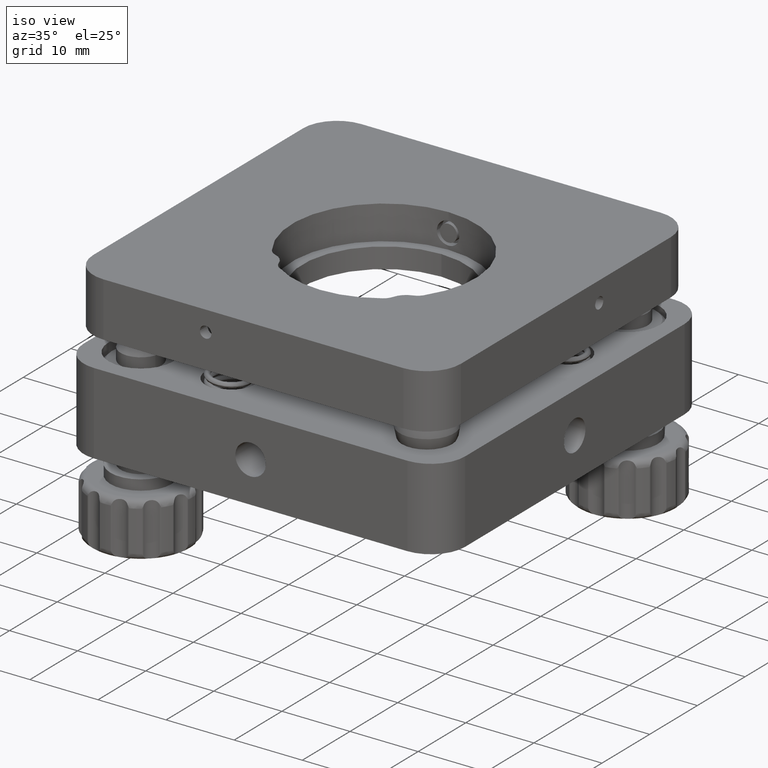
[diagram: clean part render]
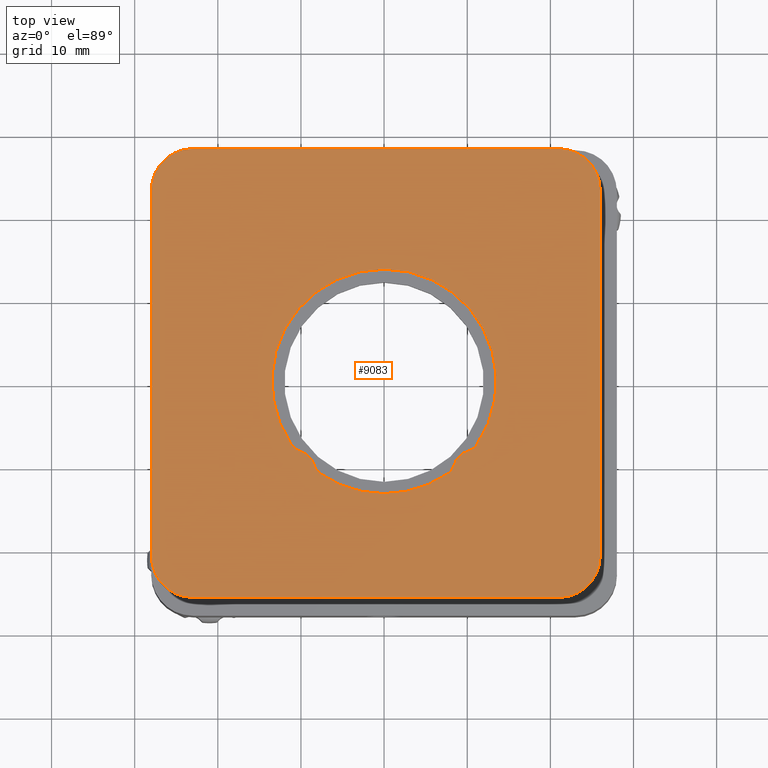
[diagram: tour spotlight — one face highlighted and labeled with its STEP entity id]
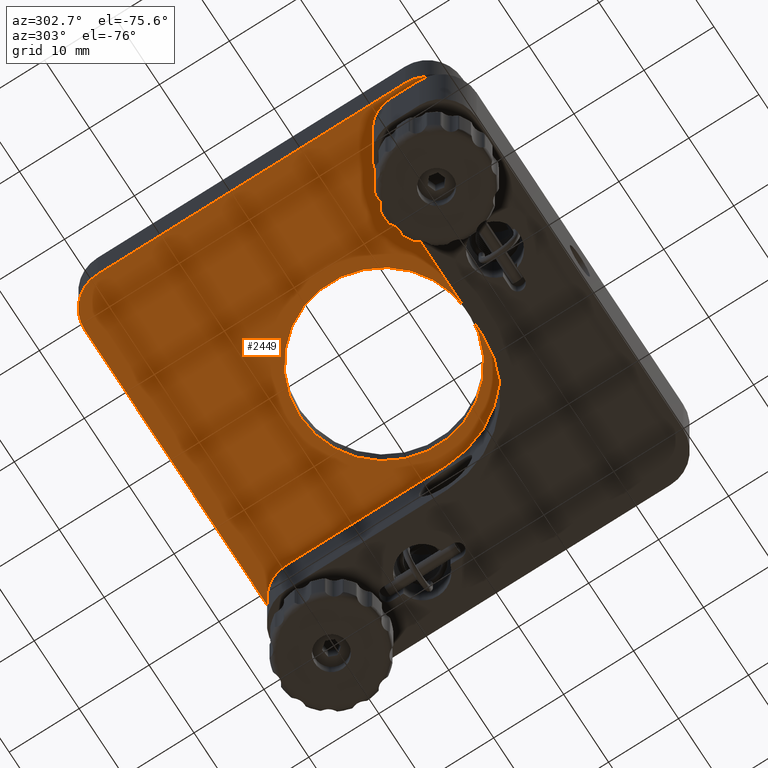
[diagram: tour spotlight — one face highlighted and labeled with its STEP entity id]
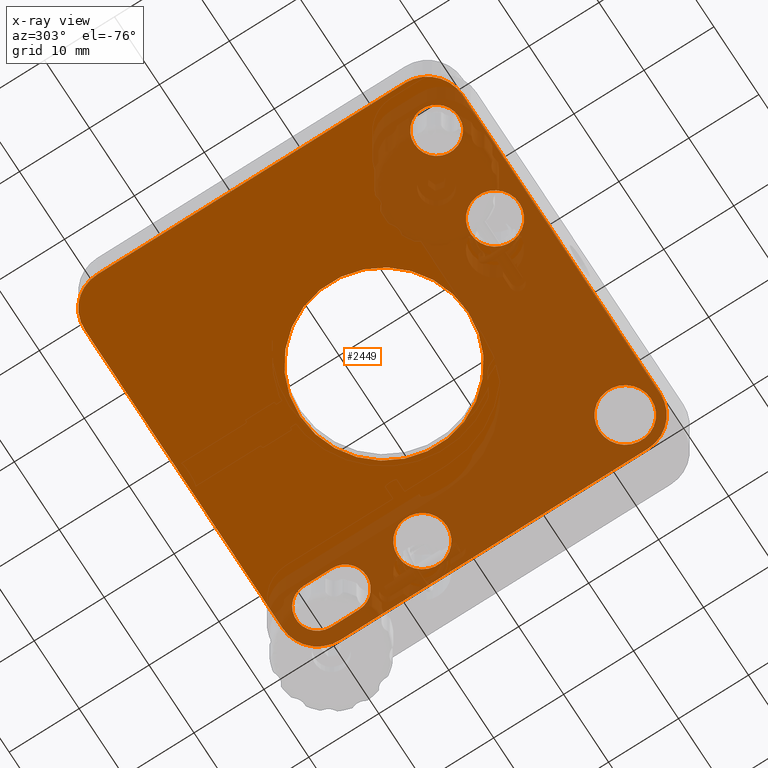
[diagram: x-ray of the same camera — body ghosted, this tour face saturated]
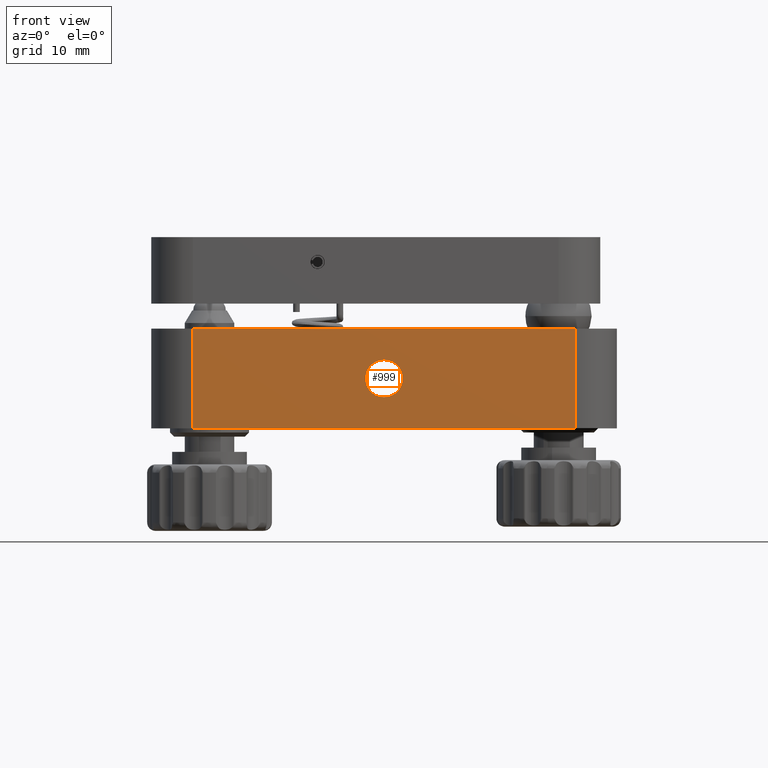
[diagram: tour spotlight — one face highlighted and labeled with its STEP entity id]
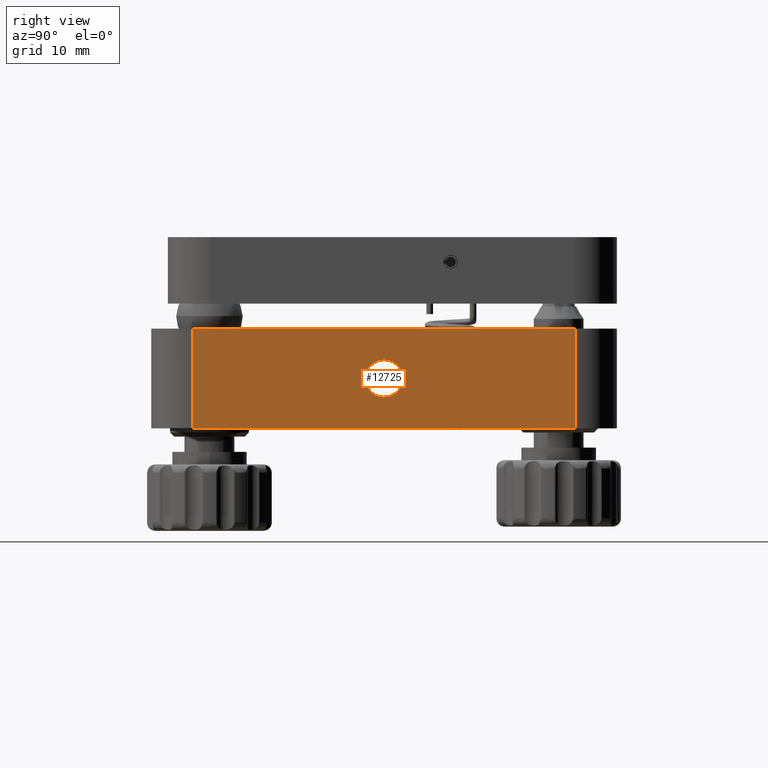
[diagram: tour spotlight — one face highlighted and labeled with its STEP entity id]
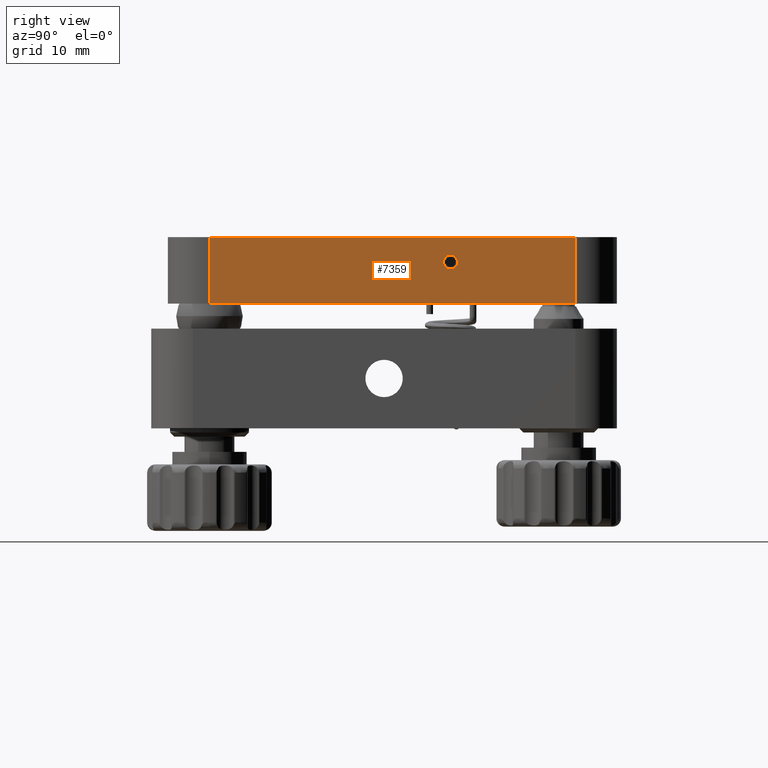
[diagram: tour spotlight — one face highlighted and labeled with its STEP entity id]
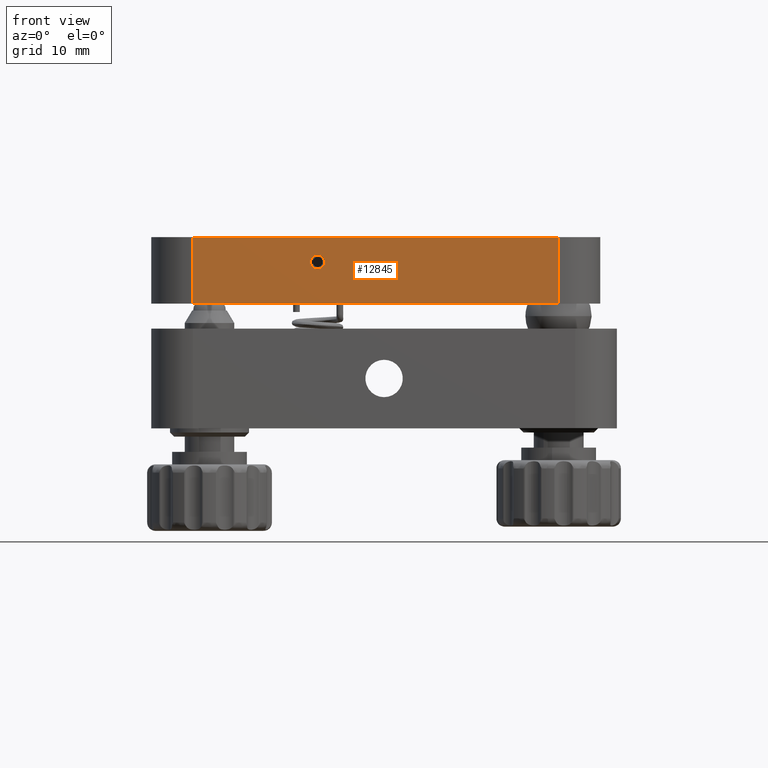
[diagram: tour spotlight — one face highlighted and labeled with its STEP entity id]
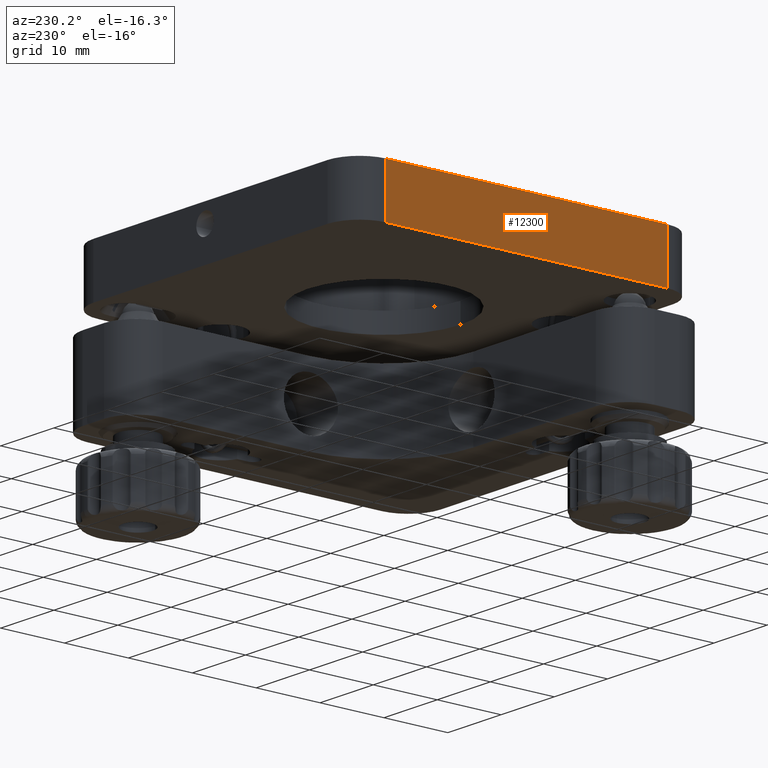
[diagram: tour spotlight — one face highlighted and labeled with its STEP entity id]
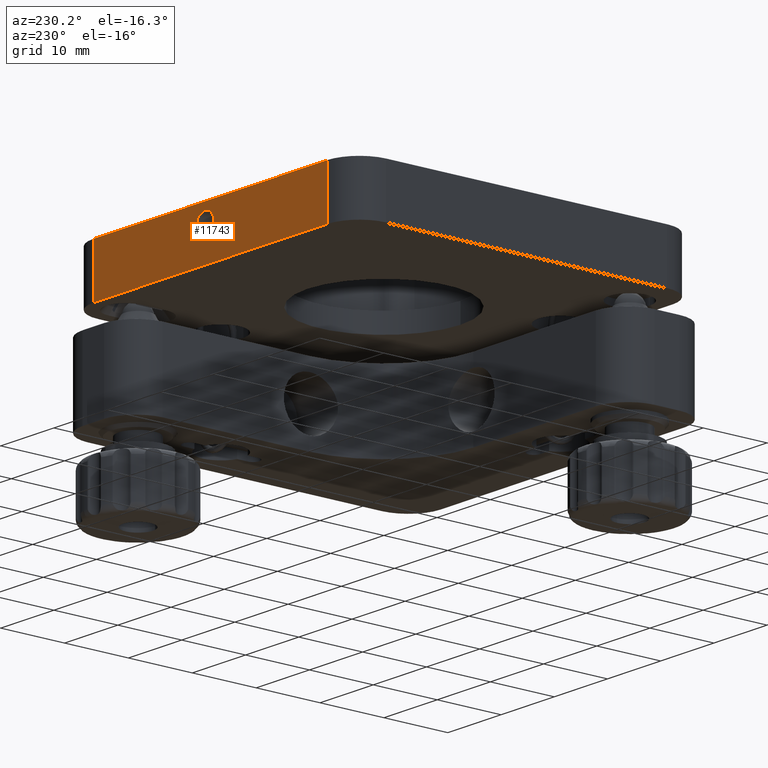
[diagram: tour spotlight — one face highlighted and labeled with its STEP entity id]
A machine part: a face-by-face anatomy tour. The part has 413 B-rep faces; the first image is the clean iso view, then the 8 largest visible faces are spotlighted one at a time (largest first), each with its STEP entity span.

Face 1 — top view, entity #9083. In plain terms, the highlighted planar face has unit normal (-0, 0, -1).
Definition (entity closure, byte-faithful):
#114 = DIRECTION ( 'NONE',  ( 0.0000000000000000000, 0.0000000000000000000, -1.000000000000000000 ) ) ;
#159 = VECTOR ( 'NONE', #14164, 1000.000000000000000 ) ;
#173 = CARTESIAN_POINT ( 'NONE',  ( -28.00000000000000700, -20.99999999999998900, 8.000000000000000000 ) ) ;
#256 = VERTEX_POINT ( 'NONE', #13634 ) ;
#442 = EDGE_CURVE ( 'NONE', #14570, #256, #9299, .T. ) ;
#487 = CIRCLE ( 'NONE', #6571, 13.50000000000000000 ) ;
#533 = DIRECTION ( 'NONE',  ( 0.0000000000000000000, -1.000000000000000000, 0.0000000000000000000 ) ) ;
#812 = DIRECTION ( 'NONE',  ( -0.0000000000000000000, 0.0000000000000000000, -1.000000000000000000 ) ) ;
#935 = PLANE ( 'NONE',  #12988 ) ;
#955 = CARTESIAN_POINT ( 'NONE',  ( 6.494772960983362400, -9.490412224201824300, 8.000000000000000000 ) ) ;
#962 = EDGE_CURVE ( 'NONE', #3000, #13031, #487, .T. ) ;
#981 = CARTESIAN_POINT ( 'NONE',  ( -9.490412224201824300, -6.494772960983364200, 8.000000000000000000 ) ) ;
#1054 = CARTESIAN_POINT ( 'NONE',  ( -22.99999999999996100, 28.00000000000000700, 8.000000000000000000 ) ) ;
#1137 = AXIS2_PLACEMENT_3D ( 'NONE', #6940, #16178, #15081 ) ;
#1303 = DIRECTION ( 'NONE',  ( -0.0000000000000000000, 0.0000000000000000000, 1.000000000000000000 ) ) ;
#1403 = EDGE_CURVE ( 'NONE', #8874, #14570, #9007, .T. ) ;
#1417 = VERTEX_POINT ( 'NONE', #9942 ) ;
#1430 = DIRECTION ( 'NONE',  ( -0.0000000000000000000, 0.0000000000000000000, 1.000000000000000000 ) ) ;
#1625 = CARTESIAN_POINT ( 'NONE',  ( 8.408207200546311100, -10.07245123566768200, 8.000000000000000000 ) ) ;
#1702 = CIRCLE ( 'NONE', #2475, 13.50000000000000000 ) ;
#1832 = CARTESIAN_POINT ( 'NONE',  ( 10.07245123566767800, -8.408207200546314700, 8.000000000000000000 ) ) ;
#1999 = ORIENTED_EDGE ( 'NONE', *, *, #3673, .F. ) ;
#2101 = CARTESIAN_POINT ( 'NONE',  ( 20.99999999999998600, -21.00000000000000000, 8.000000000000000000 ) ) ;
#2460 = EDGE_CURVE ( 'NONE', #3000, #10104, #13681, .T. ) ;
#2475 = AXIS2_PLACEMENT_3D ( 'NONE', #9285, #1303, #5411 ) ;
#2644 = ORIENTED_EDGE ( 'NONE', *, *, #6903, .F. ) ;
#2648 = DIRECTION ( 'NONE',  ( 0.0000000000000000000, 0.0000000000000000000, -1.000000000000000000 ) ) ;
#2700 = DIRECTION ( 'NONE',  ( 0.0000000000000000000, 0.0000000000000000000, -1.000000000000000000 ) ) ;
#2942 = AXIS2_PLACEMENT_3D ( 'NONE', #9235, #114, #13199 ) ;
#3000 = VERTEX_POINT ( 'NONE', #11866 ) ;
#3091 = CARTESIAN_POINT ( 'NONE',  ( -0.0000000000000000000, 0.0000000000000000000, 8.000000000000000000 ) ) ;
#3193 = CARTESIAN_POINT ( 'NONE',  ( -28.00000000000000000, 22.99999999999997500, 8.000000000000000000 ) ) ;
#3273 = ORIENTED_EDGE ( 'NONE', *, *, #13504, .T. ) ;
#3475 = EDGE_LOOP ( 'NONE', ( #1999, #3273, #7774, #8296, #16998, #5539, #17072, #3486, #16193 ) ) ;
#3486 = ORIENTED_EDGE ( 'NONE', *, *, #15425, .T. ) ;
#3499 = VECTOR ( 'NONE', #4411, 1000.000000000000000 ) ;
#3673 = EDGE_CURVE ( 'NONE', #4984, #4098, #1702, .T. ) ;
#3847 = CIRCLE ( 'NONE', #11133, 2.000000000000000000 ) ;
#3874 = VECTOR ( 'NONE', #8444, 1000.000000000000000 ) ;
#4098 = VERTEX_POINT ( 'NONE', #16614 ) ;
#4411 = DIRECTION ( 'NONE',  ( 1.000000000000000000, -3.008956720148862000E-016, -0.0000000000000000000 ) ) ;
#4628 = EDGE_LOOP ( 'NONE', ( #15814, #13245, #2644, #15257, #16621, #12447, #11598, #7295 ) ) ;
#4771 = LINE ( 'NONE', #13865, #3499 ) ;
#4773 = VERTEX_POINT ( 'NONE', #15717 ) ;
#4797 = CARTESIAN_POINT ( 'NONE',  ( 26.00000000000001100, 22.99999999999999300, 8.000000000000000000 ) ) ;
#4847 = DIRECTION ( 'NONE',  ( 0.0000000000000000000, -1.000000000000000000, 0.0000000000000000000 ) ) ;
#4984 = VERTEX_POINT ( 'NONE', #17007 ) ;
#5070 = CARTESIAN_POINT ( 'NONE',  ( 9.490412224201820700, -6.494772960983365100, 8.000000000000000000 ) ) ;
#5111 = VERTEX_POINT ( 'NONE', #1625 ) ;
#5142 = DIRECTION ( 'NONE',  ( 0.0000000000000000000, 0.0000000000000000000, -1.000000000000000000 ) ) ;
#5331 = CIRCLE ( 'NONE', #1137, 2.500000000000000400 ) ;
#5411 = DIRECTION ( 'NONE',  ( 2.220446049250312600E-016, 1.000000000000000000, 0.0000000000000000000 ) ) ;
#5539 = ORIENTED_EDGE ( 'NONE', *, *, #962, .F. ) ;
#5676 = DIRECTION ( 'NONE',  ( -6.162999403743056100E-016, -1.000000000000000000, 0.0000000000000000000 ) ) ;
#5889 = EDGE_CURVE ( 'NONE', #256, #4773, #14052, .T. ) ;
#6317 = AXIS2_PLACEMENT_3D ( 'NONE', #10738, #1430, #17352 ) ;
#6514 = AXIS2_PLACEMENT_3D ( 'NONE', #2101, #10207, #4847 ) ;
#6571 = AXIS2_PLACEMENT_3D ( 'NONE', #3091, #15070, #7209 ) ;
#6903 = EDGE_CURVE ( 'NONE', #1417, #13527, #11096, .T. ) ;
#6940 = CARTESIAN_POINT ( 'NONE',  ( -10.79999999999999900, -10.79999999999999900, 8.000000000000000000 ) ) ;
#6956 = DIRECTION ( 'NONE',  ( -4.336808689942017700E-016, -1.000000000000000000, 0.0000000000000000000 ) ) ;
#7117 = DIRECTION ( 'NONE',  ( 0.0000000000000000000, -1.000000000000000000, 0.0000000000000000000 ) ) ;
#7209 = DIRECTION ( 'NONE',  ( 2.220446049250312600E-016, 1.000000000000000000, 0.0000000000000000000 ) ) ;
#7295 = ORIENTED_EDGE ( 'NONE', *, *, #11565, .F. ) ;
#7466 = LINE ( 'NONE', #15096, #3874 ) ;
#7608 = CIRCLE ( 'NONE', #12777, 2.000000000000000000 ) ;
#7774 = ORIENTED_EDGE ( 'NONE', *, *, #9948, .T. ) ;
#7825 = CIRCLE ( 'NONE', #8561, 1.999999999999999100 ) ;
#7841 = EDGE_CURVE ( 'NONE', #4773, #1417, #7466, .T. ) ;
#8167 = CARTESIAN_POINT ( 'NONE',  ( -6.494772960983365100, -9.490412224201822500, 8.000000000000000000 ) ) ;
#8296 = ORIENTED_EDGE ( 'NONE', *, *, #9061, .T. ) ;
#8356 = AXIS2_PLACEMENT_3D ( 'NONE', #5070, #2648, #533 ) ;
#8423 = DIRECTION ( 'NONE',  ( 0.0000000000000000000, 0.0000000000000000000, -1.000000000000000000 ) ) ;
#8444 = DIRECTION ( 'NONE',  ( -1.000000000000000000, 2.220446049250312600E-016, 0.0000000000000000000 ) ) ;
#8561 = AXIS2_PLACEMENT_3D ( 'NONE', #981, #2700, #11300 ) ;
#8739 = VERTEX_POINT ( 'NONE', #14008 ) ;
#8874 = VERTEX_POINT ( 'NONE', #11420 ) ;
#8965 = DIRECTION ( 'NONE',  ( -2.220446049250312600E-016, -1.000000000000000000, 0.0000000000000000000 ) ) ;
#9007 = CIRCLE ( 'NONE', #2942, 5.000000000000000900 ) ;
#9061 = EDGE_CURVE ( 'NONE', #12619, #8739, #7825, .T. ) ;
#9083 = ADVANCED_FACE ( 'NONE', ( #14493, #10309 ), #935, .F. ) ;
#9235 = CARTESIAN_POINT ( 'NONE',  ( 21.00000000000000400, 22.99999999999999600, 8.000000000000000000 ) ) ;
#9285 = CARTESIAN_POINT ( 'NONE',  ( -0.0000000000000000000, 0.0000000000000000000, 8.000000000000000000 ) ) ;
#9299 = LINE ( 'NONE', #12291, #12423 ) ;
#9868 = CIRCLE ( 'NONE', #12237, 4.999999999999997300 ) ;
#9942 = CARTESIAN_POINT ( 'NONE',  ( -23.00000000000001400, -25.99999999999999300, 8.000000000000000000 ) ) ;
#9948 = EDGE_CURVE ( 'NONE', #13971, #12619, #5331, .T. ) ;
#10047 = CARTESIAN_POINT ( 'NONE',  ( -23.00000000000000400, 23.00000000000001100, 8.000000000000000000 ) ) ;
#10104 = VERTEX_POINT ( 'NONE', #1832 ) ;
#10207 = DIRECTION ( 'NONE',  ( 0.0000000000000000000, 0.0000000000000000000, -1.000000000000000000 ) ) ;
#10309 = FACE_OUTER_BOUND ( 'NONE', #4628, .T. ) ;
#10353 = VERTEX_POINT ( 'NONE', #1054 ) ;
#10373 = EDGE_CURVE ( 'NONE', #5111, #4098, #7608, .T. ) ;
#10734 = CIRCLE ( 'NONE', #6317, 13.50000000000000000 ) ;
#10738 = CARTESIAN_POINT ( 'NONE',  ( -0.0000000000000000000, 0.0000000000000000000, 8.000000000000000000 ) ) ;
#10739 = DIRECTION ( 'NONE',  ( -0.0000000000000000000, 0.0000000000000000000, 1.000000000000000000 ) ) ;
#10766 = EDGE_CURVE ( 'NONE', #13527, #12147, #10843, .T. ) ;
#10843 = LINE ( 'NONE', #16755, #159 ) ;
#11071 = DIRECTION ( 'NONE',  ( 0.0000000000000000000, 0.0000000000000000000, -1.000000000000000000 ) ) ;
#11096 = CIRCLE ( 'NONE', #15584, 5.000000000000000900 ) ;
#11133 = AXIS2_PLACEMENT_3D ( 'NONE', #8167, #11071, #6956 ) ;
#11300 = DIRECTION ( 'NONE',  ( 0.0000000000000000000, -1.000000000000000000, 0.0000000000000000000 ) ) ;
#11420 = CARTESIAN_POINT ( 'NONE',  ( 21.00000000000000700, 28.00000000000000000, 8.000000000000000000 ) ) ;
#11461 = CARTESIAN_POINT ( 'NONE',  ( -10.07245123566767800, -8.408207200546309300, 8.000000000000000000 ) ) ;
#11565 = EDGE_CURVE ( 'NONE', #10353, #8874, #4771, .T. ) ;
#11598 = ORIENTED_EDGE ( 'NONE', *, *, #1403, .F. ) ;
#11761 = AXIS2_PLACEMENT_3D ( 'NONE', #14659, #10739, #17298 ) ;
#11866 = CARTESIAN_POINT ( 'NONE',  ( 11.14091869797605100, -7.624298693328299200, 8.000000000000000000 ) ) ;
#12147 = VERTEX_POINT ( 'NONE', #3193 ) ;
#12237 = AXIS2_PLACEMENT_3D ( 'NONE', #15249, #8423, #7117 ) ;
#12291 = CARTESIAN_POINT ( 'NONE',  ( 26.00000000000001100, 22.99999999999999300, 8.000000000000000000 ) ) ;
#12423 = VECTOR ( 'NONE', #5676, 1000.000000000000000 ) ;
#12447 = ORIENTED_EDGE ( 'NONE', *, *, #442, .F. ) ;
#12619 = VERTEX_POINT ( 'NONE', #11461 ) ;
#12777 = AXIS2_PLACEMENT_3D ( 'NONE', #955, #5142, #14367 ) ;
#12988 = AXIS2_PLACEMENT_3D ( 'NONE', #10047, #812, #8965 ) ;
#13031 = VERTEX_POINT ( 'NONE', #14976 ) ;
#13199 = DIRECTION ( 'NONE',  ( 0.0000000000000000000, -1.000000000000000000, 0.0000000000000000000 ) ) ;
#13245 = ORIENTED_EDGE ( 'NONE', *, *, #10766, .F. ) ;
#13373 = CARTESIAN_POINT ( 'NONE',  ( -8.408207200546309300, -10.07245123566767800, 8.000000000000000000 ) ) ;
#13504 = EDGE_CURVE ( 'NONE', #4984, #13971, #3847, .T. ) ;
#13527 = VERTEX_POINT ( 'NONE', #173 ) ;
#13634 = CARTESIAN_POINT ( 'NONE',  ( 25.99999999999998600, -21.00000000000000400, 8.000000000000000000 ) ) ;
#13681 = CIRCLE ( 'NONE', #8356, 2.000000000000000000 ) ;
#13865 = CARTESIAN_POINT ( 'NONE',  ( 21.00000000000000700, 27.99999999999999600, 8.000000000000000000 ) ) ;
#13971 = VERTEX_POINT ( 'NONE', #13373 ) ;
#14008 = CARTESIAN_POINT ( 'NONE',  ( -11.14091869797605300, -7.624298693328295700, 8.000000000000000000 ) ) ;
#14052 = CIRCLE ( 'NONE', #6514, 5.000000000000000900 ) ;
#14164 = DIRECTION ( 'NONE',  ( 2.220446049250312600E-016, 1.000000000000000000, 0.0000000000000000000 ) ) ;
#14351 = EDGE_CURVE ( 'NONE', #12147, #10353, #9868, .T. ) ;
#14367 = DIRECTION ( 'NONE',  ( -4.336808689942017700E-016, -1.000000000000000000, 0.0000000000000000000 ) ) ;
#14493 = FACE_BOUND ( 'NONE', #3475, .T. ) ;
#14570 = VERTEX_POINT ( 'NONE', #4797 ) ;
#14659 = CARTESIAN_POINT ( 'NONE',  ( 10.80000000000000100, -10.80000000000000200, 8.000000000000000000 ) ) ;
#14976 = CARTESIAN_POINT ( 'NONE',  ( 2.997602166487921900E-015, 13.50000000000000000, 8.000000000000000000 ) ) ;
#15070 = DIRECTION ( 'NONE',  ( -0.0000000000000000000, 0.0000000000000000000, 1.000000000000000000 ) ) ;
#15081 = DIRECTION ( 'NONE',  ( 0.0000000000000000000, 1.000000000000000000, 0.0000000000000000000 ) ) ;
#15096 = CARTESIAN_POINT ( 'NONE',  ( 20.99999999999998200, -26.00000000000000400, 8.000000000000000000 ) ) ;
#15169 = DIRECTION ( 'NONE',  ( 0.0000000000000000000, -1.000000000000000000, 0.0000000000000000000 ) ) ;
#15228 = CARTESIAN_POINT ( 'NONE',  ( -23.00000000000001100, -20.99999999999999300, 8.000000000000000000 ) ) ;
#15249 = CARTESIAN_POINT ( 'NONE',  ( -23.00000000000000400, 23.00000000000001100, 8.000000000000000000 ) ) ;
#15257 = ORIENTED_EDGE ( 'NONE', *, *, #7841, .F. ) ;
#15274 = DIRECTION ( 'NONE',  ( 0.0000000000000000000, 0.0000000000000000000, -1.000000000000000000 ) ) ;
#15425 = EDGE_CURVE ( 'NONE', #10104, #5111, #16175, .T. ) ;
#15584 = AXIS2_PLACEMENT_3D ( 'NONE', #15228, #15274, #15169 ) ;
#15717 = CARTESIAN_POINT ( 'NONE',  ( 20.99999999999998200, -26.00000000000000400, 8.000000000000000000 ) ) ;
#15814 = ORIENTED_EDGE ( 'NONE', *, *, #14351, .F. ) ;
#16175 = CIRCLE ( 'NONE', #11761, 2.500000000000000400 ) ;
#16178 = DIRECTION ( 'NONE',  ( -0.0000000000000000000, 0.0000000000000000000, 1.000000000000000000 ) ) ;
#16193 = ORIENTED_EDGE ( 'NONE', *, *, #10373, .T. ) ;
#16614 = CARTESIAN_POINT ( 'NONE',  ( 7.624298693328294800, -11.14091869797605300, 8.000000000000000000 ) ) ;
#16621 = ORIENTED_EDGE ( 'NONE', *, *, #5889, .F. ) ;
#16755 = CARTESIAN_POINT ( 'NONE',  ( -28.00000000000000000, 22.99999999999997500, 8.000000000000000000 ) ) ;
#16998 = ORIENTED_EDGE ( 'NONE', *, *, #17106, .F. ) ;
#17007 = CARTESIAN_POINT ( 'NONE',  ( -7.624298693328298300, -11.14091869797605100, 8.000000000000000000 ) ) ;
#17072 = ORIENTED_EDGE ( 'NONE', *, *, #2460, .T. ) ;
#17106 = EDGE_CURVE ( 'NONE', #13031, #8739, #10734, .T. ) ;
#17298 = DIRECTION ( 'NONE',  ( 0.0000000000000000000, 1.000000000000000000, 0.0000000000000000000 ) ) ;
#17352 = DIRECTION ( 'NONE',  ( 2.220446049250312600E-016, 1.000000000000000000, 0.0000000000000000000 ) ) ;

Face 2 — auxiliary view, entity #2449. An x-ray twin of the same camera follows (body ghosted, this face saturated) — the face is partly hidden behind the body. In plain terms, the highlighted planar face has unit normal (-0, 0, -1).
Definition (entity closure, byte-faithful):
#72 = EDGE_LOOP ( 'NONE', ( #6699, #16177 ) ) ;
#78 = CIRCLE ( 'NONE', #10109, 3.500000000000013300 ) ;
#115 = CARTESIAN_POINT ( 'NONE',  ( 21.00000000000000400, 11.50000000000000900, -1.126637845516583700E-015 ) ) ;
#148 = CARTESIAN_POINT ( 'NONE',  ( 26.00000000000001100, 22.99999999999999300, 0.0000000000000000000 ) ) ;
#469 = VERTEX_POINT ( 'NONE', #15103 ) ;
#578 = VERTEX_POINT ( 'NONE', #12679 ) ;
#880 = DIRECTION ( 'NONE',  ( 0.0000000000000000000, 0.0000000000000000000, -1.000000000000000000 ) ) ;
#909 = AXIS2_PLACEMENT_3D ( 'NONE', #5482, #11864, #4119 ) ;
#1084 = CIRCLE ( 'NONE', #15272, 3.175000000000000700 ) ;
#1099 = CIRCLE ( 'NONE', #11469, 3.500000000000013300 ) ;
#1150 = DIRECTION ( 'NONE',  ( 0.0000000000000000000, 0.0000000000000000000, -1.000000000000000000 ) ) ;
#1296 = FACE_BOUND ( 'NONE', #14118, .T. ) ;
#1317 = CIRCLE ( 'NONE', #11314, 12.00000000000000200 ) ;
#1379 = EDGE_CURVE ( 'NONE', #10579, #469, #16961, .T. ) ;
#1435 = CARTESIAN_POINT ( 'NONE',  ( -23.00000000000001400, -25.99999999999999300, 0.0000000000000000000 ) ) ;
#1480 = CARTESIAN_POINT ( 'NONE',  ( 21.00000000000000000, 23.00000000000000000, 0.0000000000000000000 ) ) ;
#1618 = CARTESIAN_POINT ( 'NONE',  ( 21.00000000000000700, 27.99999999999999600, 0.0000000000000000000 ) ) ;
#1681 = AXIS2_PLACEMENT_3D ( 'NONE', #2471, #7785, #11841 ) ;
#1728 = ORIENTED_EDGE ( 'NONE', *, *, #5020, .T. ) ;
#1767 = ORIENTED_EDGE ( 'NONE', *, *, #7506, .T. ) ;
#1835 = AXIS2_PLACEMENT_3D ( 'NONE', #13009, #1150, #2481 ) ;
#1850 = EDGE_CURVE ( 'NONE', #15347, #6507, #6953, .T. ) ;
#1977 = CARTESIAN_POINT ( 'NONE',  ( -21.00000000000000700, -17.82499999999999600, 0.0000000000000000000 ) ) ;
#2224 = CARTESIAN_POINT ( 'NONE',  ( 21.00000000000000400, 7.999999999999994700, -1.126637845516583700E-015 ) ) ;
#2301 = DIRECTION ( 'NONE',  ( -2.220446049250312300E-016, -1.000000000000000000, 0.0000000000000000000 ) ) ;
#2449 = ADVANCED_FACE ( 'NONE', ( #1296, #3009, #8471, #15357, #7037, #3433, #17225 ), #6468, .T. ) ;
#2471 = CARTESIAN_POINT ( 'NONE',  ( -23.00000000000000400, 23.00000000000001100, 0.0000000000000000000 ) ) ;
#2481 = DIRECTION ( 'NONE',  ( 0.0000000000000000000, -1.000000000000000000, 0.0000000000000000000 ) ) ;
#2548 = LINE ( 'NONE', #13900, #14704 ) ;
#2624 = DIRECTION ( 'NONE',  ( 0.0000000000000000000, 0.0000000000000000000, -1.000000000000000000 ) ) ;
#2713 = AXIS2_PLACEMENT_3D ( 'NONE', #4209, #2778, #16334 ) ;
#2759 = CARTESIAN_POINT ( 'NONE',  ( -8.000000000000005300, -24.50000000000001100, -1.126637845516583700E-015 ) ) ;
#2769 = LINE ( 'NONE', #1618, #9054 ) ;
#2778 = DIRECTION ( 'NONE',  ( 0.0000000000000000000, 0.0000000000000000000, -1.000000000000000000 ) ) ;
#2779 = CARTESIAN_POINT ( 'NONE',  ( 20.99999999999998200, -26.00000000000000400, -0.0000000000000000000 ) ) ;
#2901 = CARTESIAN_POINT ( 'NONE',  ( -2.664535259100375300E-015, -12.00000000000000200, 0.0000000000000000000 ) ) ;
#3009 = FACE_BOUND ( 'NONE', #16234, .T. ) ;
#3087 = ORIENTED_EDGE ( 'NONE', *, *, #10435, .F. ) ;
#3196 = VERTEX_POINT ( 'NONE', #115 ) ;
#3256 = ORIENTED_EDGE ( 'NONE', *, *, #14150, .T. ) ;
#3433 = FACE_BOUND ( 'NONE', #12041, .T. ) ;
#3515 = CARTESIAN_POINT ( 'NONE',  ( 24.04000000000001000, 18.99999999999999600, 0.0000000000000000000 ) ) ;
#3771 = EDGE_CURVE ( 'NONE', #4335, #7715, #16366, .T. ) ;
#3816 = DIRECTION ( 'NONE',  ( -0.0000000000000000000, -0.0000000000000000000, 1.000000000000000000 ) ) ;
#3852 = AXIS2_PLACEMENT_3D ( 'NONE', #9261, #4007, #17340 ) ;
#3887 = ORIENTED_EDGE ( 'NONE', *, *, #1379, .F. ) ;
#3942 = DIRECTION ( 'NONE',  ( 0.0000000000000000000, 0.0000000000000000000, -1.000000000000000000 ) ) ;
#3990 = VECTOR ( 'NONE', #17129, 1000.000000000000000 ) ;
#4004 = CIRCLE ( 'NONE', #16208, 4.999999999999997300 ) ;
#4007 = DIRECTION ( 'NONE',  ( 0.0000000000000000000, 0.0000000000000000000, -1.000000000000000000 ) ) ;
#4021 = VECTOR ( 'NONE', #12702, 1000.000000000000000 ) ;
#4026 = VERTEX_POINT ( 'NONE', #4615 ) ;
#4072 = CARTESIAN_POINT ( 'NONE',  ( 21.00000000000000400, 7.999999999999994700, -1.126637845516583700E-015 ) ) ;
#4090 = CIRCLE ( 'NONE', #6687, 3.500000000000013300 ) ;
#4119 = DIRECTION ( 'NONE',  ( 0.0000000000000000000, -1.000000000000000000, 0.0000000000000000000 ) ) ;
#4150 = VERTEX_POINT ( 'NONE', #13884 ) ;
#4160 = CARTESIAN_POINT ( 'NONE',  ( 17.95999999999999400, 19.00000000000000000, 0.0000000000000000000 ) ) ;
#4209 = CARTESIAN_POINT ( 'NONE',  ( -21.00000000000000700, -20.99999999999999600, 0.0000000000000000000 ) ) ;
#4220 = EDGE_CURVE ( 'NONE', #12892, #15347, #13415, .T. ) ;
#4299 = CARTESIAN_POINT ( 'NONE',  ( 0.0000000000000000000, 0.0000000000000000000, 0.0000000000000000000 ) ) ;
#4335 = VERTEX_POINT ( 'NONE', #1977 ) ;
#4513 = VERTEX_POINT ( 'NONE', #6735 ) ;
#4605 = ORIENTED_EDGE ( 'NONE', *, *, #9215, .T. ) ;
#4615 = CARTESIAN_POINT ( 'NONE',  ( -28.00000000000000700, -20.99999999999998900, 0.0000000000000000000 ) ) ;
#4724 = ORIENTED_EDGE ( 'NONE', *, *, #1850, .T. ) ;
#4744 = ORIENTED_EDGE ( 'NONE', *, *, #12811, .T. ) ;
#4826 = DIRECTION ( 'NONE',  ( 0.0000000000000000000, -1.000000000000000000, 0.0000000000000000000 ) ) ;
#4879 = CIRCLE ( 'NONE', #8007, 3.040000000000008000 ) ;
#4891 = EDGE_CURVE ( 'NONE', #4513, #16473, #11519, .T. ) ;
#4922 = ORIENTED_EDGE ( 'NONE', *, *, #4891, .T. ) ;
#5020 = EDGE_CURVE ( 'NONE', #12580, #13080, #4004, .T. ) ;
#5101 = DIRECTION ( 'NONE',  ( 0.0000000000000000000, 0.0000000000000000000, -1.000000000000000000 ) ) ;
#5194 = DIRECTION ( 'NONE',  ( -2.220446049250312600E-016, -1.000000000000000000, 0.0000000000000000000 ) ) ;
#5232 = AXIS2_PLACEMENT_3D ( 'NONE', #10521, #13204, #6907 ) ;
#5259 = CARTESIAN_POINT ( 'NONE',  ( -22.99999999999996100, 28.00000000000000700, 0.0000000000000000000 ) ) ;
#5292 = CARTESIAN_POINT ( 'NONE',  ( 21.00000000000000000, 19.00000000000000000, 0.0000000000000000000 ) ) ;
#5369 = DIRECTION ( 'NONE',  ( -0.0000000000000000000, -0.0000000000000000000, 1.000000000000000000 ) ) ;
#5432 = CIRCLE ( 'NONE', #5232, 5.000000000000000900 ) ;
#5436 = CARTESIAN_POINT ( 'NONE',  ( -8.000000000000005300, -20.99999999999999600, -1.126637845516583700E-015 ) ) ;
#5440 = EDGE_LOOP ( 'NONE', ( #3887, #3087 ) ) ;
#5482 = CARTESIAN_POINT ( 'NONE',  ( 20.99999999999999600, -21.00000000000000400, -0.0000000000000000000 ) ) ;
#5788 = ORIENTED_EDGE ( 'NONE', *, *, #14527, .T. ) ;
#5877 = DIRECTION ( 'NONE',  ( 0.0000000000000000000, 0.0000000000000000000, -1.000000000000000000 ) ) ;
#6201 = CIRCLE ( 'NONE', #16927, 12.00000000000000200 ) ;
#6276 = DIRECTION ( 'NONE',  ( -1.000000000000000000, 2.220446049250312600E-016, 0.0000000000000000000 ) ) ;
#6352 = CARTESIAN_POINT ( 'NONE',  ( -28.00000000000000000, 22.99999999999997500, 0.0000000000000000000 ) ) ;
#6468 = PLANE ( 'NONE',  #1681 ) ;
#6505 = EDGE_CURVE ( 'NONE', #578, #12010, #10042, .T. ) ;
#6507 = VERTEX_POINT ( 'NONE', #10248 ) ;
#6583 = CIRCLE ( 'NONE', #12662, 3.040000000000008000 ) ;
#6687 = AXIS2_PLACEMENT_3D ( 'NONE', #16835, #15478, #8811 ) ;
#6699 = ORIENTED_EDGE ( 'NONE', *, *, #10017, .F. ) ;
#6724 = CARTESIAN_POINT ( 'NONE',  ( -23.00000000000000400, 23.00000000000001100, 0.0000000000000000000 ) ) ;
#6735 = CARTESIAN_POINT ( 'NONE',  ( 21.00000000000000700, 28.00000000000000000, 0.0000000000000000000 ) ) ;
#6776 = DIRECTION ( 'NONE',  ( 1.141265444721580600E-015, -1.000000000000000000, 0.0000000000000000000 ) ) ;
#6907 = DIRECTION ( 'NONE',  ( 0.0000000000000000000, -1.000000000000000000, 0.0000000000000000000 ) ) ;
#6953 = LINE ( 'NONE', #13277, #3990 ) ;
#7014 = CIRCLE ( 'NONE', #3852, 3.708099243547830600 ) ;
#7037 = FACE_BOUND ( 'NONE', #72, .T. ) ;
#7180 = VECTOR ( 'NONE', #5194, 1000.000000000000000 ) ;
#7182 = CARTESIAN_POINT ( 'NONE',  ( 20.99999999999999600, -24.70809924354783500, 0.0000000000000000000 ) ) ;
#7506 = EDGE_CURVE ( 'NONE', #4026, #12580, #13729, .T. ) ;
#7509 = CARTESIAN_POINT ( 'NONE',  ( 26.00000000000001100, 22.99999999999999300, 0.0000000000000000000 ) ) ;
#7577 = AXIS2_PLACEMENT_3D ( 'NONE', #10190, #3816, #4826 ) ;
#7715 = VERTEX_POINT ( 'NONE', #12105 ) ;
#7731 = EDGE_CURVE ( 'NONE', #14125, #4150, #6201, .T. ) ;
#7785 = DIRECTION ( 'NONE',  ( -0.0000000000000000000, 0.0000000000000000000, -1.000000000000000000 ) ) ;
#8007 = AXIS2_PLACEMENT_3D ( 'NONE', #1480, #10913, #12257 ) ;
#8029 = DIRECTION ( 'NONE',  ( 0.0000000000000000000, -1.000000000000000000, 0.0000000000000000000 ) ) ;
#8055 = EDGE_LOOP ( 'NONE', ( #10570, #16454 ) ) ;
#8071 = VERTEX_POINT ( 'NONE', #10575 ) ;
#8110 = EDGE_CURVE ( 'NONE', #4150, #14125, #1317, .T. ) ;
#8287 = DIRECTION ( 'NONE',  ( 0.0000000000000000000, 0.0000000000000000000, -1.000000000000000000 ) ) ;
#8471 = FACE_BOUND ( 'NONE', #8055, .T. ) ;
#8493 = ORIENTED_EDGE ( 'NONE', *, *, #8110, .F. ) ;
#8527 = CIRCLE ( 'NONE', #1835, 5.000000000000000900 ) ;
#8606 = ORIENTED_EDGE ( 'NONE', *, *, #6505, .T. ) ;
#8696 = VERTEX_POINT ( 'NONE', #2759 ) ;
#8811 = DIRECTION ( 'NONE',  ( 0.0000000000000000000, -1.000000000000000000, 0.0000000000000000000 ) ) ;
#9054 = VECTOR ( 'NONE', #9703, 1000.000000000000000 ) ;
#9215 = EDGE_CURVE ( 'NONE', #12010, #12892, #6583, .T. ) ;
#9239 = DIRECTION ( 'NONE',  ( 0.0000000000000000000, -1.000000000000000000, 0.0000000000000000000 ) ) ;
#9261 = CARTESIAN_POINT ( 'NONE',  ( 20.99999999999999600, -21.00000000000000400, -0.0000000000000000000 ) ) ;
#9703 = DIRECTION ( 'NONE',  ( 1.000000000000000000, -3.008956720148862000E-016, -0.0000000000000000000 ) ) ;
#9990 = EDGE_CURVE ( 'NONE', #13080, #4513, #2769, .T. ) ;
#10017 = EDGE_CURVE ( 'NONE', #7715, #4335, #1084, .T. ) ;
#10042 = LINE ( 'NONE', #12979, #7180 ) ;
#10083 = ORIENTED_EDGE ( 'NONE', *, *, #7731, .F. ) ;
#10109 = AXIS2_PLACEMENT_3D ( 'NONE', #4072, #16039, #15866 ) ;
#10190 = CARTESIAN_POINT ( 'NONE',  ( 21.00000000000000000, 19.00000000000000000, 0.0000000000000000000 ) ) ;
#10229 = DIRECTION ( 'NONE',  ( 2.220446049250312600E-016, 1.000000000000000000, 0.0000000000000000000 ) ) ;
#10248 = CARTESIAN_POINT ( 'NONE',  ( 24.04000000000001000, 23.00000000000000700, 0.0000000000000000000 ) ) ;
#10435 = EDGE_CURVE ( 'NONE', #469, #10579, #7014, .T. ) ;
#10521 = CARTESIAN_POINT ( 'NONE',  ( 20.99999999999998600, -21.00000000000000000, -0.0000000000000000000 ) ) ;
#10570 = ORIENTED_EDGE ( 'NONE', *, *, #14870, .F. ) ;
#10575 = CARTESIAN_POINT ( 'NONE',  ( -8.000000000000005300, -17.49999999999998600, -1.126637845516583700E-015 ) ) ;
#10579 = VERTEX_POINT ( 'NONE', #7182 ) ;
#10913 = DIRECTION ( 'NONE',  ( -0.0000000000000000000, -0.0000000000000000000, 1.000000000000000000 ) ) ;
#11069 = CARTESIAN_POINT ( 'NONE',  ( 21.00000000000000400, 4.499999999999981300, -1.126637845516583700E-015 ) ) ;
#11124 = VERTEX_POINT ( 'NONE', #2779 ) ;
#11149 = EDGE_CURVE ( 'NONE', #3196, #15116, #14605, .T. ) ;
#11172 = AXIS2_PLACEMENT_3D ( 'NONE', #11338, #12962, #15672 ) ;
#11178 = CARTESIAN_POINT ( 'NONE',  ( 25.99999999999998600, -21.00000000000000400, -0.0000000000000000000 ) ) ;
#11314 = AXIS2_PLACEMENT_3D ( 'NONE', #14561, #5101, #2301 ) ;
#11338 = CARTESIAN_POINT ( 'NONE',  ( 21.00000000000000400, 22.99999999999999600, 0.0000000000000000000 ) ) ;
#11383 = DIRECTION ( 'NONE',  ( 0.0000000000000000000, -1.000000000000000000, 0.0000000000000000000 ) ) ;
#11405 = EDGE_CURVE ( 'NONE', #15172, #11124, #5432, .T. ) ;
#11469 = AXIS2_PLACEMENT_3D ( 'NONE', #5436, #3942, #9239 ) ;
#11519 = CIRCLE ( 'NONE', #11172, 5.000000000000000900 ) ;
#11762 = ORIENTED_EDGE ( 'NONE', *, *, #4220, .T. ) ;
#11841 = DIRECTION ( 'NONE',  ( -2.220446049250312600E-016, -1.000000000000000000, 0.0000000000000000000 ) ) ;
#11864 = DIRECTION ( 'NONE',  ( 0.0000000000000000000, 0.0000000000000000000, -1.000000000000000000 ) ) ;
#12010 = VERTEX_POINT ( 'NONE', #4160 ) ;
#12041 = EDGE_LOOP ( 'NONE', ( #10083, #8493 ) ) ;
#12055 = VERTEX_POINT ( 'NONE', #1435 ) ;
#12105 = CARTESIAN_POINT ( 'NONE',  ( -21.00000000000000700, -24.17499999999999700, 0.0000000000000000000 ) ) ;
#12257 = DIRECTION ( 'NONE',  ( 0.0000000000000000000, -1.000000000000000000, 0.0000000000000000000 ) ) ;
#12580 = VERTEX_POINT ( 'NONE', #12920 ) ;
#12662 = AXIS2_PLACEMENT_3D ( 'NONE', #5292, #5369, #6776 ) ;
#12679 = CARTESIAN_POINT ( 'NONE',  ( 17.95999999999999400, 23.00000000000000000, 0.0000000000000000000 ) ) ;
#12702 = DIRECTION ( 'NONE',  ( -6.162999403743056100E-016, -1.000000000000000000, 0.0000000000000000000 ) ) ;
#12704 = CARTESIAN_POINT ( 'NONE',  ( -21.00000000000000700, -20.99999999999999600, 0.0000000000000000000 ) ) ;
#12811 = EDGE_CURVE ( 'NONE', #12055, #4026, #8527, .T. ) ;
#12814 = DIRECTION ( 'NONE',  ( 0.0000000000000000000, -1.000000000000000000, 0.0000000000000000000 ) ) ;
#12892 = VERTEX_POINT ( 'NONE', #13185 ) ;
#12920 = CARTESIAN_POINT ( 'NONE',  ( -28.00000000000000000, 22.99999999999997500, 0.0000000000000000000 ) ) ;
#12962 = DIRECTION ( 'NONE',  ( 0.0000000000000000000, 0.0000000000000000000, -1.000000000000000000 ) ) ;
#12979 = CARTESIAN_POINT ( 'NONE',  ( 17.95999999999999400, 19.00000000000000000, 0.0000000000000000000 ) ) ;
#13009 = CARTESIAN_POINT ( 'NONE',  ( -23.00000000000001100, -20.99999999999999300, 0.0000000000000000000 ) ) ;
#13080 = VERTEX_POINT ( 'NONE', #5259 ) ;
#13185 = CARTESIAN_POINT ( 'NONE',  ( 21.00000000000000000, 15.95999999999999200, 0.0000000000000000000 ) ) ;
#13204 = DIRECTION ( 'NONE',  ( 0.0000000000000000000, 0.0000000000000000000, -1.000000000000000000 ) ) ;
#13277 = CARTESIAN_POINT ( 'NONE',  ( 24.04000000000001000, 23.00000000000000000, 0.0000000000000000000 ) ) ;
#13392 = EDGE_CURVE ( 'NONE', #8071, #8696, #1099, .T. ) ;
#13415 = CIRCLE ( 'NONE', #7577, 3.040000000000008000 ) ;
#13729 = LINE ( 'NONE', #6352, #14337 ) ;
#13884 = CARTESIAN_POINT ( 'NONE',  ( 1.194959100123551600E-015, 12.00000000000000200, 0.0000000000000000000 ) ) ;
#13900 = CARTESIAN_POINT ( 'NONE',  ( 20.99999999999998200, -26.00000000000000400, -0.0000000000000000000 ) ) ;
#14118 = EDGE_LOOP ( 'NONE', ( #3256, #8606, #4605, #11762, #4724 ) ) ;
#14125 = VERTEX_POINT ( 'NONE', #2901 ) ;
#14150 = EDGE_CURVE ( 'NONE', #6507, #578, #4879, .T. ) ;
#14202 = ORIENTED_EDGE ( 'NONE', *, *, #13392, .F. ) ;
#14337 = VECTOR ( 'NONE', #10229, 1000.000000000000000 ) ;
#14527 = EDGE_CURVE ( 'NONE', #16473, #15172, #17178, .T. ) ;
#14543 = ORIENTED_EDGE ( 'NONE', *, *, #15208, .F. ) ;
#14561 = CARTESIAN_POINT ( 'NONE',  ( 0.0000000000000000000, 0.0000000000000000000, 0.0000000000000000000 ) ) ;
#14605 = CIRCLE ( 'NONE', #16286, 3.500000000000013300 ) ;
#14704 = VECTOR ( 'NONE', #6276, 1000.000000000000000 ) ;
#14795 = ORIENTED_EDGE ( 'NONE', *, *, #9990, .T. ) ;
#14870 = EDGE_CURVE ( 'NONE', #15116, #3196, #78, .T. ) ;
#14995 = DIRECTION ( 'NONE',  ( -2.220446049250312300E-016, -1.000000000000000000, 0.0000000000000000000 ) ) ;
#15103 = CARTESIAN_POINT ( 'NONE',  ( 20.99999999999999600, -17.29190075645217600, 0.0000000000000000000 ) ) ;
#15116 = VERTEX_POINT ( 'NONE', #11069 ) ;
#15172 = VERTEX_POINT ( 'NONE', #11178 ) ;
#15189 = EDGE_LOOP ( 'NONE', ( #1728, #14795, #4922, #5788, #15240, #17247, #4744, #1767 ) ) ;
#15208 = EDGE_CURVE ( 'NONE', #8696, #8071, #4090, .T. ) ;
#15240 = ORIENTED_EDGE ( 'NONE', *, *, #11405, .T. ) ;
#15272 = AXIS2_PLACEMENT_3D ( 'NONE', #12704, #5877, #11383 ) ;
#15347 = VERTEX_POINT ( 'NONE', #3515 ) ;
#15357 = FACE_BOUND ( 'NONE', #5440, .T. ) ;
#15478 = DIRECTION ( 'NONE',  ( 0.0000000000000000000, 0.0000000000000000000, -1.000000000000000000 ) ) ;
#15672 = DIRECTION ( 'NONE',  ( 0.0000000000000000000, -1.000000000000000000, 0.0000000000000000000 ) ) ;
#15857 = EDGE_CURVE ( 'NONE', #11124, #12055, #2548, .T. ) ;
#15866 = DIRECTION ( 'NONE',  ( 0.0000000000000000000, -1.000000000000000000, 0.0000000000000000000 ) ) ;
#16039 = DIRECTION ( 'NONE',  ( 0.0000000000000000000, 0.0000000000000000000, -1.000000000000000000 ) ) ;
#16177 = ORIENTED_EDGE ( 'NONE', *, *, #3771, .F. ) ;
#16208 = AXIS2_PLACEMENT_3D ( 'NONE', #6724, #2624, #8029 ) ;
#16234 = EDGE_LOOP ( 'NONE', ( #14543, #14202 ) ) ;
#16286 = AXIS2_PLACEMENT_3D ( 'NONE', #2224, #880, #12814 ) ;
#16334 = DIRECTION ( 'NONE',  ( 0.0000000000000000000, -1.000000000000000000, 0.0000000000000000000 ) ) ;
#16366 = CIRCLE ( 'NONE', #2713, 3.175000000000000700 ) ;
#16454 = ORIENTED_EDGE ( 'NONE', *, *, #11149, .F. ) ;
#16473 = VERTEX_POINT ( 'NONE', #148 ) ;
#16835 = CARTESIAN_POINT ( 'NONE',  ( -8.000000000000005300, -20.99999999999999600, -1.126637845516583700E-015 ) ) ;
#16927 = AXIS2_PLACEMENT_3D ( 'NONE', #4299, #8287, #14995 ) ;
#16961 = CIRCLE ( 'NONE', #909, 3.708099243547830600 ) ;
#17129 = DIRECTION ( 'NONE',  ( 2.220446049250312600E-016, 1.000000000000000000, 0.0000000000000000000 ) ) ;
#17178 = LINE ( 'NONE', #7509, #4021 ) ;
#17225 = FACE_OUTER_BOUND ( 'NONE', #15189, .T. ) ;
#17247 = ORIENTED_EDGE ( 'NONE', *, *, #15857, .T. ) ;
#17340 = DIRECTION ( 'NONE',  ( 0.0000000000000000000, -1.000000000000000000, 0.0000000000000000000 ) ) ;

Face 3 — front view, entity #999. In plain terms, the highlighted planar face has unit normal (0, -1, 0).
Definition (entity closure, byte-faithful):
#22 = EDGE_CURVE ( 'NONE', #12417, #8681, #11562, .T. ) ;
#176 = EDGE_CURVE ( 'NONE', #12417, #6186, #11989, .T. ) ;
#242 = AXIS2_PLACEMENT_3D ( 'NONE', #3240, #12557, #13949 ) ;
#999 = ADVANCED_FACE ( 'NONE', ( #13177, #6766 ), #7267, .T. ) ;
#2064 = CARTESIAN_POINT ( 'NONE',  ( 2.455096279876545700E-016, -27.99999999999999600, -6.750000000000003600 ) ) ;
#2444 = CARTESIAN_POINT ( 'NONE',  ( -22.99999999999995400, -28.00000000000000000, -3.000000000000002700 ) ) ;
#3240 = CARTESIAN_POINT ( 'NONE',  ( -22.99999999999995400, -28.00000000000000000, -15.00000000000000400 ) ) ;
#4279 = LINE ( 'NONE', #2444, #5976 ) ;
#4439 = DIRECTION ( 'NONE',  ( 0.0000000000000000000, 0.0000000000000000000, 1.000000000000000000 ) ) ;
#4611 = CARTESIAN_POINT ( 'NONE',  ( -22.99999999999995400, -28.00000000000000000, -3.000000000000002700 ) ) ;
#4989 = CARTESIAN_POINT ( 'NONE',  ( -3.003590182049984500E-017, -27.99999999999999600, -11.25000000000000400 ) ) ;
#5056 = CARTESIAN_POINT ( 'NONE',  ( -3.003590182049984500E-017, -27.99999999999999600, -9.000000000000003600 ) ) ;
#5112 = DIRECTION ( 'NONE',  ( 1.000000000000000000, 7.542275982507868200E-017, 0.0000000000000000000 ) ) ;
#5138 = ORIENTED_EDGE ( 'NONE', *, *, #9012, .T. ) ;
#5792 = CARTESIAN_POINT ( 'NONE',  ( -22.99999999999995400, -28.00000000000000000, -15.00000000000000400 ) ) ;
#5976 = VECTOR ( 'NONE', #5112, 1000.000000000000000 ) ;
#6186 = VERTEX_POINT ( 'NONE', #4611 ) ;
#6246 = CARTESIAN_POINT ( 'NONE',  ( -3.003590182049984500E-017, -27.99999999999999600, -9.000000000000003600 ) ) ;
#6374 = ORIENTED_EDGE ( 'NONE', *, *, #12707, .T. ) ;
#6766 = FACE_BOUND ( 'NONE', #12394, .T. ) ;
#7259 = DIRECTION ( 'NONE',  ( 0.0000000000000000000, 0.0000000000000000000, 1.000000000000000000 ) ) ;
#7267 = PLANE ( 'NONE',  #242 ) ;
#7624 = DIRECTION ( 'NONE',  ( -7.542275982507867000E-017, 1.000000000000000000, -0.0000000000000000000 ) ) ;
#8044 = CIRCLE ( 'NONE', #12109, 2.249999999999999600 ) ;
#8060 = VERTEX_POINT ( 'NONE', #17069 ) ;
#8681 = VERTEX_POINT ( 'NONE', #13589 ) ;
#8869 = VECTOR ( 'NONE', #7259, 1000.000000000000000 ) ;
#9012 = EDGE_CURVE ( 'NONE', #10790, #13867, #8044, .T. ) ;
#9653 = EDGE_LOOP ( 'NONE', ( #12676, #11154, #15868, #14964 ) ) ;
#9776 = VECTOR ( 'NONE', #4439, 1000.000000000000000 ) ;
#10522 = DIRECTION ( 'NONE',  ( -7.542275982507867000E-017, 1.000000000000000000, -0.0000000000000000000 ) ) ;
#10790 = VERTEX_POINT ( 'NONE', #2064 ) ;
#11154 = ORIENTED_EDGE ( 'NONE', *, *, #176, .F. ) ;
#11562 = LINE ( 'NONE', #11701, #12395 ) ;
#11701 = CARTESIAN_POINT ( 'NONE',  ( -22.99999999999995400, -28.00000000000000000, -15.00000000000000400 ) ) ;
#11989 = LINE ( 'NONE', #5792, #8869 ) ;
#12046 = AXIS2_PLACEMENT_3D ( 'NONE', #6246, #7624, #16894 ) ;
#12107 = EDGE_CURVE ( 'NONE', #8681, #8060, #13541, .T. ) ;
#12109 = AXIS2_PLACEMENT_3D ( 'NONE', #5056, #10522, #14409 ) ;
#12394 = EDGE_LOOP ( 'NONE', ( #6374, #5138 ) ) ;
#12395 = VECTOR ( 'NONE', #14450, 1000.000000000000000 ) ;
#12417 = VERTEX_POINT ( 'NONE', #15337 ) ;
#12557 = DIRECTION ( 'NONE',  ( 7.542275982507867000E-017, -1.000000000000000000, 0.0000000000000000000 ) ) ;
#12646 = CARTESIAN_POINT ( 'NONE',  ( 22.99999999999997200, -27.99999999999999600, -15.00000000000000400 ) ) ;
#12647 = CIRCLE ( 'NONE', #12046, 2.249999999999999600 ) ;
#12676 = ORIENTED_EDGE ( 'NONE', *, *, #13220, .F. ) ;
#12707 = EDGE_CURVE ( 'NONE', #13867, #10790, #12647, .T. ) ;
#13177 = FACE_OUTER_BOUND ( 'NONE', #9653, .T. ) ;
#13220 = EDGE_CURVE ( 'NONE', #6186, #8060, #4279, .T. ) ;
#13541 = LINE ( 'NONE', #12646, #9776 ) ;
#13589 = CARTESIAN_POINT ( 'NONE',  ( 22.99999999999997200, -27.99999999999999600, -15.00000000000000400 ) ) ;
#13867 = VERTEX_POINT ( 'NONE', #4989 ) ;
#13949 = DIRECTION ( 'NONE',  ( 1.000000000000000000, 7.542275982507867000E-017, 0.0000000000000000000 ) ) ;
#14409 = DIRECTION ( 'NONE',  ( 1.000000000000000000, 0.0000000000000000000, 0.0000000000000000000 ) ) ;
#14450 = DIRECTION ( 'NONE',  ( 1.000000000000000000, 7.542275982507868200E-017, 0.0000000000000000000 ) ) ;
#14964 = ORIENTED_EDGE ( 'NONE', *, *, #12107, .T. ) ;
#15337 = CARTESIAN_POINT ( 'NONE',  ( -22.99999999999995400, -28.00000000000000000, -15.00000000000000400 ) ) ;
#15868 = ORIENTED_EDGE ( 'NONE', *, *, #22, .T. ) ;
#16894 = DIRECTION ( 'NONE',  ( 1.000000000000000000, 0.0000000000000000000, 0.0000000000000000000 ) ) ;
#17069 = CARTESIAN_POINT ( 'NONE',  ( 22.99999999999997200, -27.99999999999999600, -3.000000000000002700 ) ) ;

Face 4 — right view, entity #12725. In plain terms, the highlighted planar face has unit normal (1, 0, -0).
Definition (entity closure, byte-faithful):
#455 = CARTESIAN_POINT ( 'NONE',  ( 28.00000000000000400, 22.99999999999996800, -3.000000000000002700 ) ) ;
#763 = DIRECTION ( 'NONE',  ( 0.0000000000000000000, 1.000000000000000000, 0.0000000000000000000 ) ) ;
#775 = DIRECTION ( 'NONE',  ( -1.508455196501573600E-016, 1.000000000000000000, -0.0000000000000000000 ) ) ;
#881 = DIRECTION ( 'NONE',  ( 0.0000000000000000000, 0.0000000000000000000, 1.000000000000000000 ) ) ;
#952 = AXIS2_PLACEMENT_3D ( 'NONE', #3383, #12722, #2198 ) ;
#960 = ORIENTED_EDGE ( 'NONE', *, *, #11148, .T. ) ;
#1508 = AXIS2_PLACEMENT_3D ( 'NONE', #11647, #11587, #763 ) ;
#1721 = EDGE_CURVE ( 'NONE', #6612, #6994, #4202, .T. ) ;
#1826 = CARTESIAN_POINT ( 'NONE',  ( 28.00000000000000400, 22.99999999999996400, -3.000000000000002700 ) ) ;
#2051 = CARTESIAN_POINT ( 'NONE',  ( 28.00000000000001100, -22.99999999999996100, -15.00000000000000400 ) ) ;
#2196 = CARTESIAN_POINT ( 'NONE',  ( 28.00000000000001100, -22.99999999999996100, -15.00000000000000400 ) ) ;
#2198 = DIRECTION ( 'NONE',  ( -1.508455196501573400E-016, 1.000000000000000000, 0.0000000000000000000 ) ) ;
#2324 = ORIENTED_EDGE ( 'NONE', *, *, #10144, .T. ) ;
#2326 = VECTOR ( 'NONE', #13970, 1000.000000000000000 ) ;
#2562 = ORIENTED_EDGE ( 'NONE', *, *, #14590, .F. ) ;
#2953 = LINE ( 'NONE', #2051, #16752 ) ;
#3283 = DIRECTION ( 'NONE',  ( 1.000000000000000000, 1.508455196501573400E-016, -0.0000000000000000000 ) ) ;
#3383 = CARTESIAN_POINT ( 'NONE',  ( 28.00000000000000400, 22.99999999999996400, -15.00000000000000400 ) ) ;
#3644 = EDGE_LOOP ( 'NONE', ( #15817, #11055 ) ) ;
#4115 = FACE_BOUND ( 'NONE', #3644, .T. ) ;
#4202 = LINE ( 'NONE', #1826, #6754 ) ;
#4632 = DIRECTION ( 'NONE',  ( 0.0000000000000000000, 1.000000000000000000, 0.0000000000000000000 ) ) ;
#4943 = VERTEX_POINT ( 'NONE', #15787 ) ;
#5807 = AXIS2_PLACEMENT_3D ( 'NONE', #11285, #3283, #4632 ) ;
#5855 = LINE ( 'NONE', #11435, #16049 ) ;
#5940 = CARTESIAN_POINT ( 'NONE',  ( 28.00000000000000700, 2.755455298081543800E-016, -6.750000000000004400 ) ) ;
#6612 = VERTEX_POINT ( 'NONE', #9386 ) ;
#6754 = VECTOR ( 'NONE', #11219, 1000.000000000000000 ) ;
#6994 = VERTEX_POINT ( 'NONE', #455 ) ;
#7391 = CARTESIAN_POINT ( 'NONE',  ( 28.00000000000000400, 22.99999999999996800, -15.00000000000000400 ) ) ;
#8460 = VERTEX_POINT ( 'NONE', #9209 ) ;
#9209 = CARTESIAN_POINT ( 'NONE',  ( 28.00000000000000400, 22.99999999999996800, -15.00000000000000400 ) ) ;
#9386 = CARTESIAN_POINT ( 'NONE',  ( 28.00000000000001100, -22.99999999999996100, -3.000000000000002700 ) ) ;
#9600 = VERTEX_POINT ( 'NONE', #5940 ) ;
#9747 = VERTEX_POINT ( 'NONE', #2196 ) ;
#10144 = EDGE_CURVE ( 'NONE', #8460, #6994, #15955, .T. ) ;
#10227 = PLANE ( 'NONE',  #952 ) ;
#11055 = ORIENTED_EDGE ( 'NONE', *, *, #12495, .F. ) ;
#11148 = EDGE_CURVE ( 'NONE', #9747, #8460, #5855, .T. ) ;
#11219 = DIRECTION ( 'NONE',  ( -1.508455196501573600E-016, 1.000000000000000000, -0.0000000000000000000 ) ) ;
#11285 = CARTESIAN_POINT ( 'NONE',  ( 28.00000000000000700, 0.0000000000000000000, -9.000000000000003600 ) ) ;
#11435 = CARTESIAN_POINT ( 'NONE',  ( 28.00000000000000400, 22.99999999999996400, -15.00000000000000400 ) ) ;
#11587 = DIRECTION ( 'NONE',  ( 1.000000000000000000, 1.508455196501573400E-016, -0.0000000000000000000 ) ) ;
#11647 = CARTESIAN_POINT ( 'NONE',  ( 28.00000000000000700, 0.0000000000000000000, -9.000000000000003600 ) ) ;
#12495 = EDGE_CURVE ( 'NONE', #9600, #4943, #15405, .T. ) ;
#12722 = DIRECTION ( 'NONE',  ( 1.000000000000000000, 1.508455196501573400E-016, -0.0000000000000000000 ) ) ;
#12725 = ADVANCED_FACE ( 'NONE', ( #4115, #16016 ), #10227, .T. ) ;
#13466 = EDGE_LOOP ( 'NONE', ( #16365, #2562, #960, #2324 ) ) ;
#13717 = EDGE_CURVE ( 'NONE', #4943, #9600, #16155, .T. ) ;
#13970 = DIRECTION ( 'NONE',  ( 0.0000000000000000000, 0.0000000000000000000, 1.000000000000000000 ) ) ;
#14590 = EDGE_CURVE ( 'NONE', #9747, #6612, #2953, .T. ) ;
#15405 = CIRCLE ( 'NONE', #1508, 2.249999999999999100 ) ;
#15787 = CARTESIAN_POINT ( 'NONE',  ( 28.00000000000000700, 0.0000000000000000000, -11.25000000000000200 ) ) ;
#15817 = ORIENTED_EDGE ( 'NONE', *, *, #13717, .F. ) ;
#15955 = LINE ( 'NONE', #7391, #2326 ) ;
#16016 = FACE_OUTER_BOUND ( 'NONE', #13466, .T. ) ;
#16049 = VECTOR ( 'NONE', #775, 1000.000000000000000 ) ;
#16155 = CIRCLE ( 'NONE', #5807, 2.249999999999999100 ) ;
#16365 = ORIENTED_EDGE ( 'NONE', *, *, #1721, .F. ) ;
#16752 = VECTOR ( 'NONE', #881, 1000.000000000000000 ) ;

Face 5 — right view, entity #7359. In plain terms, the highlighted planar face has unit normal (1, -0, -0).
Definition (entity closure, byte-faithful):
#148 = CARTESIAN_POINT ( 'NONE',  ( 26.00000000000001100, 22.99999999999999300, 0.0000000000000000000 ) ) ;
#256 = VERTEX_POINT ( 'NONE', #13634 ) ;
#442 = EDGE_CURVE ( 'NONE', #14570, #256, #9299, .T. ) ;
#555 = EDGE_CURVE ( 'NONE', #14570, #16473, #8676, .T. ) ;
#780 = AXIS2_PLACEMENT_3D ( 'NONE', #13382, #9128, #14908 ) ;
#1856 = DIRECTION ( 'NONE',  ( 0.0000000000000000000, 0.0000000000000000000, -1.000000000000000000 ) ) ;
#2518 = LINE ( 'NONE', #11278, #12978 ) ;
#3323 = DIRECTION ( 'NONE',  ( 0.0000000000000000000, -1.000000000000000000, 0.0000000000000000000 ) ) ;
#4021 = VECTOR ( 'NONE', #12702, 1000.000000000000000 ) ;
#4400 = EDGE_CURVE ( 'NONE', #9929, #14781, #13207, .T. ) ;
#4478 = CIRCLE ( 'NONE', #10791, 0.8500000000000130800 ) ;
#4617 = CARTESIAN_POINT ( 'NONE',  ( 26.00000000000000400, 7.999999999999994700, 5.000000000000000000 ) ) ;
#4797 = CARTESIAN_POINT ( 'NONE',  ( 26.00000000000001100, 22.99999999999999300, 8.000000000000000000 ) ) ;
#5376 = EDGE_CURVE ( 'NONE', #256, #15172, #2518, .T. ) ;
#5676 = DIRECTION ( 'NONE',  ( -6.162999403743056100E-016, -1.000000000000000000, 0.0000000000000000000 ) ) ;
#5836 = EDGE_LOOP ( 'NONE', ( #16425, #11347 ) ) ;
#6220 = FACE_BOUND ( 'NONE', #5836, .T. ) ;
#6425 = FACE_OUTER_BOUND ( 'NONE', #11724, .T. ) ;
#6577 = ORIENTED_EDGE ( 'NONE', *, *, #555, .F. ) ;
#7359 = ADVANCED_FACE ( 'NONE', ( #6220, #6425 ), #14741, .T. ) ;
#7488 = CARTESIAN_POINT ( 'NONE',  ( 26.00000000000001100, 22.99999999999999300, 8.000000000000000000 ) ) ;
#7509 = CARTESIAN_POINT ( 'NONE',  ( 26.00000000000001100, 22.99999999999999300, 0.0000000000000000000 ) ) ;
#8676 = LINE ( 'NONE', #7488, #15351 ) ;
#9128 = DIRECTION ( 'NONE',  ( 1.000000000000000000, -6.162999403743056100E-016, -0.0000000000000000000 ) ) ;
#9299 = LINE ( 'NONE', #12291, #12423 ) ;
#9929 = VERTEX_POINT ( 'NONE', #16068 ) ;
#9934 = AXIS2_PLACEMENT_3D ( 'NONE', #12050, #16031, #13210 ) ;
#9980 = DIRECTION ( 'NONE',  ( 1.000000000000000000, -6.162999403743056100E-016, -0.0000000000000000000 ) ) ;
#10149 = EDGE_CURVE ( 'NONE', #14781, #9929, #4478, .T. ) ;
#10614 = ORIENTED_EDGE ( 'NONE', *, *, #14527, .F. ) ;
#10784 = CARTESIAN_POINT ( 'NONE',  ( 26.00000000000000400, 7.149999999999981700, 5.000000000000000000 ) ) ;
#10791 = AXIS2_PLACEMENT_3D ( 'NONE', #4617, #9980, #3323 ) ;
#11178 = CARTESIAN_POINT ( 'NONE',  ( 25.99999999999998600, -21.00000000000000400, -0.0000000000000000000 ) ) ;
#11278 = CARTESIAN_POINT ( 'NONE',  ( 25.99999999999998600, -21.00000000000000400, 8.000000000000000000 ) ) ;
#11347 = ORIENTED_EDGE ( 'NONE', *, *, #4400, .F. ) ;
#11724 = EDGE_LOOP ( 'NONE', ( #10614, #6577, #15050, #12006 ) ) ;
#12006 = ORIENTED_EDGE ( 'NONE', *, *, #5376, .T. ) ;
#12050 = CARTESIAN_POINT ( 'NONE',  ( 26.00000000000000400, 7.999999999999994700, 5.000000000000000000 ) ) ;
#12291 = CARTESIAN_POINT ( 'NONE',  ( 26.00000000000001100, 22.99999999999999300, 8.000000000000000000 ) ) ;
#12423 = VECTOR ( 'NONE', #5676, 1000.000000000000000 ) ;
#12702 = DIRECTION ( 'NONE',  ( -6.162999403743056100E-016, -1.000000000000000000, 0.0000000000000000000 ) ) ;
#12978 = VECTOR ( 'NONE', #16574, 1000.000000000000000 ) ;
#13207 = CIRCLE ( 'NONE', #9934, 0.8500000000000130800 ) ;
#13210 = DIRECTION ( 'NONE',  ( 0.0000000000000000000, -1.000000000000000000, 0.0000000000000000000 ) ) ;
#13382 = CARTESIAN_POINT ( 'NONE',  ( 26.00000000000001100, 22.99999999999999300, 8.000000000000000000 ) ) ;
#13634 = CARTESIAN_POINT ( 'NONE',  ( 25.99999999999998600, -21.00000000000000400, 8.000000000000000000 ) ) ;
#14527 = EDGE_CURVE ( 'NONE', #16473, #15172, #17178, .T. ) ;
#14570 = VERTEX_POINT ( 'NONE', #4797 ) ;
#14741 = PLANE ( 'NONE',  #780 ) ;
#14781 = VERTEX_POINT ( 'NONE', #10784 ) ;
#14908 = DIRECTION ( 'NONE',  ( -6.162999403743056100E-016, -1.000000000000000000, 0.0000000000000000000 ) ) ;
#15050 = ORIENTED_EDGE ( 'NONE', *, *, #442, .T. ) ;
#15172 = VERTEX_POINT ( 'NONE', #11178 ) ;
#15351 = VECTOR ( 'NONE', #1856, 1000.000000000000000 ) ;
#16031 = DIRECTION ( 'NONE',  ( 1.000000000000000000, -6.162999403743056100E-016, -0.0000000000000000000 ) ) ;
#16068 = CARTESIAN_POINT ( 'NONE',  ( 26.00000000000000400, 8.850000000000008500, 5.000000000000000000 ) ) ;
#16425 = ORIENTED_EDGE ( 'NONE', *, *, #10149, .F. ) ;
#16473 = VERTEX_POINT ( 'NONE', #148 ) ;
#16574 = DIRECTION ( 'NONE',  ( 0.0000000000000000000, 0.0000000000000000000, -1.000000000000000000 ) ) ;
#17178 = LINE ( 'NONE', #7509, #4021 ) ;

Face 6 — front view, entity #12845. In plain terms, the highlighted planar face has unit normal (-0, -1, 0).
Definition (entity closure, byte-faithful):
#82 = EDGE_LOOP ( 'NONE', ( #6202, #515 ) ) ;
#515 = ORIENTED_EDGE ( 'NONE', *, *, #6943, .F. ) ;
#1230 = CIRCLE ( 'NONE', #10232, 0.8500000000000139700 ) ;
#1417 = VERTEX_POINT ( 'NONE', #9942 ) ;
#1435 = CARTESIAN_POINT ( 'NONE',  ( -23.00000000000001400, -25.99999999999999300, 0.0000000000000000000 ) ) ;
#1481 = DIRECTION ( 'NONE',  ( -1.000000000000000000, 2.220446049250312600E-016, 0.0000000000000000000 ) ) ;
#1853 = CIRCLE ( 'NONE', #4845, 0.8500000000000139700 ) ;
#2137 = CARTESIAN_POINT ( 'NONE',  ( -8.000000000000005300, -25.99999999999999600, 5.000000000000000000 ) ) ;
#2380 = CARTESIAN_POINT ( 'NONE',  ( -7.149999999999991500, -25.99999999999999600, 5.000000000000000000 ) ) ;
#2548 = LINE ( 'NONE', #13900, #14704 ) ;
#2779 = CARTESIAN_POINT ( 'NONE',  ( 20.99999999999998200, -26.00000000000000400, -0.0000000000000000000 ) ) ;
#2800 = ORIENTED_EDGE ( 'NONE', *, *, #6159, .T. ) ;
#3874 = VECTOR ( 'NONE', #8444, 1000.000000000000000 ) ;
#4466 = DIRECTION ( 'NONE',  ( -1.000000000000000000, 0.0000000000000000000, 0.0000000000000000000 ) ) ;
#4644 = VECTOR ( 'NONE', #16461, 1000.000000000000000 ) ;
#4674 = LINE ( 'NONE', #14391, #12375 ) ;
#4773 = VERTEX_POINT ( 'NONE', #15717 ) ;
#4845 = AXIS2_PLACEMENT_3D ( 'NONE', #16443, #9792, #4466 ) ;
#4945 = DIRECTION ( 'NONE',  ( -1.000000000000000000, 0.0000000000000000000, 0.0000000000000000000 ) ) ;
#5822 = FACE_OUTER_BOUND ( 'NONE', #14563, .T. ) ;
#6159 = EDGE_CURVE ( 'NONE', #1417, #12055, #8415, .T. ) ;
#6202 = ORIENTED_EDGE ( 'NONE', *, *, #7084, .F. ) ;
#6276 = DIRECTION ( 'NONE',  ( -1.000000000000000000, 2.220446049250312600E-016, 0.0000000000000000000 ) ) ;
#6574 = CARTESIAN_POINT ( 'NONE',  ( 20.99999999999998200, -26.00000000000000400, 8.000000000000000000 ) ) ;
#6943 = EDGE_CURVE ( 'NONE', #11378, #7288, #1853, .T. ) ;
#7084 = EDGE_CURVE ( 'NONE', #7288, #11378, #1230, .T. ) ;
#7288 = VERTEX_POINT ( 'NONE', #10403 ) ;
#7466 = LINE ( 'NONE', #15096, #3874 ) ;
#7535 = ORIENTED_EDGE ( 'NONE', *, *, #7841, .T. ) ;
#7841 = EDGE_CURVE ( 'NONE', #4773, #1417, #7466, .T. ) ;
#8415 = LINE ( 'NONE', #8418, #4644 ) ;
#8418 = CARTESIAN_POINT ( 'NONE',  ( -23.00000000000001400, -25.99999999999999300, 8.000000000000000000 ) ) ;
#8444 = DIRECTION ( 'NONE',  ( -1.000000000000000000, 2.220446049250312600E-016, 0.0000000000000000000 ) ) ;
#8992 = DIRECTION ( 'NONE',  ( 0.0000000000000000000, 0.0000000000000000000, -1.000000000000000000 ) ) ;
#9792 = DIRECTION ( 'NONE',  ( -2.220446049250312600E-016, -1.000000000000000000, 0.0000000000000000000 ) ) ;
#9942 = CARTESIAN_POINT ( 'NONE',  ( -23.00000000000001400, -25.99999999999999300, 8.000000000000000000 ) ) ;
#10232 = AXIS2_PLACEMENT_3D ( 'NONE', #2137, #11637, #4945 ) ;
#10403 = CARTESIAN_POINT ( 'NONE',  ( -8.850000000000019200, -25.99999999999999600, 5.000000000000000000 ) ) ;
#11124 = VERTEX_POINT ( 'NONE', #2779 ) ;
#11378 = VERTEX_POINT ( 'NONE', #2380 ) ;
#11637 = DIRECTION ( 'NONE',  ( -2.220446049250312600E-016, -1.000000000000000000, 0.0000000000000000000 ) ) ;
#12055 = VERTEX_POINT ( 'NONE', #1435 ) ;
#12284 = AXIS2_PLACEMENT_3D ( 'NONE', #6574, #16171, #1481 ) ;
#12375 = VECTOR ( 'NONE', #8992, 1000.000000000000000 ) ;
#12713 = ORIENTED_EDGE ( 'NONE', *, *, #15857, .F. ) ;
#12845 = ADVANCED_FACE ( 'NONE', ( #15200, #5822 ), #14557, .T. ) ;
#13843 = EDGE_CURVE ( 'NONE', #4773, #11124, #4674, .T. ) ;
#13900 = CARTESIAN_POINT ( 'NONE',  ( 20.99999999999998200, -26.00000000000000400, -0.0000000000000000000 ) ) ;
#14123 = ORIENTED_EDGE ( 'NONE', *, *, #13843, .F. ) ;
#14391 = CARTESIAN_POINT ( 'NONE',  ( 20.99999999999998200, -26.00000000000000400, 8.000000000000000000 ) ) ;
#14557 = PLANE ( 'NONE',  #12284 ) ;
#14563 = EDGE_LOOP ( 'NONE', ( #12713, #14123, #7535, #2800 ) ) ;
#14704 = VECTOR ( 'NONE', #6276, 1000.000000000000000 ) ;
#15096 = CARTESIAN_POINT ( 'NONE',  ( 20.99999999999998200, -26.00000000000000400, 8.000000000000000000 ) ) ;
#15200 = FACE_BOUND ( 'NONE', #82, .T. ) ;
#15717 = CARTESIAN_POINT ( 'NONE',  ( 20.99999999999998200, -26.00000000000000400, 8.000000000000000000 ) ) ;
#15857 = EDGE_CURVE ( 'NONE', #11124, #12055, #2548, .T. ) ;
#16171 = DIRECTION ( 'NONE',  ( -2.220446049250312600E-016, -1.000000000000000000, 0.0000000000000000000 ) ) ;
#16443 = CARTESIAN_POINT ( 'NONE',  ( -8.000000000000005300, -25.99999999999999600, 5.000000000000000000 ) ) ;
#16461 = DIRECTION ( 'NONE',  ( 0.0000000000000000000, 0.0000000000000000000, -1.000000000000000000 ) ) ;

Face 7 — auxiliary view, entity #12300. In plain terms, the highlighted planar face has unit normal (-1, 0, 0).
Definition (entity closure, byte-faithful):
#159 = VECTOR ( 'NONE', #14164, 1000.000000000000000 ) ;
#173 = CARTESIAN_POINT ( 'NONE',  ( -28.00000000000000700, -20.99999999999998900, 8.000000000000000000 ) ) ;
#2052 = CARTESIAN_POINT ( 'NONE',  ( -28.00000000000000000, 22.99999999999997500, 8.000000000000000000 ) ) ;
#3193 = CARTESIAN_POINT ( 'NONE',  ( -28.00000000000000000, 22.99999999999997500, 8.000000000000000000 ) ) ;
#3595 = ORIENTED_EDGE ( 'NONE', *, *, #7506, .F. ) ;
#4026 = VERTEX_POINT ( 'NONE', #4615 ) ;
#4457 = DIRECTION ( 'NONE',  ( 0.0000000000000000000, 0.0000000000000000000, -1.000000000000000000 ) ) ;
#4615 = CARTESIAN_POINT ( 'NONE',  ( -28.00000000000000700, -20.99999999999998900, 0.0000000000000000000 ) ) ;
#6352 = CARTESIAN_POINT ( 'NONE',  ( -28.00000000000000000, 22.99999999999997500, 0.0000000000000000000 ) ) ;
#6489 = ORIENTED_EDGE ( 'NONE', *, *, #15690, .T. ) ;
#6623 = AXIS2_PLACEMENT_3D ( 'NONE', #2052, #11419, #12730 ) ;
#6879 = ORIENTED_EDGE ( 'NONE', *, *, #10766, .T. ) ;
#7506 = EDGE_CURVE ( 'NONE', #4026, #12580, #13729, .T. ) ;
#7516 = ORIENTED_EDGE ( 'NONE', *, *, #13603, .F. ) ;
#7699 = EDGE_LOOP ( 'NONE', ( #3595, #7516, #6879, #6489 ) ) ;
#8120 = VECTOR ( 'NONE', #4457, 1000.000000000000000 ) ;
#9292 = LINE ( 'NONE', #16166, #15967 ) ;
#10229 = DIRECTION ( 'NONE',  ( 2.220446049250312600E-016, 1.000000000000000000, 0.0000000000000000000 ) ) ;
#10766 = EDGE_CURVE ( 'NONE', #13527, #12147, #10843, .T. ) ;
#10843 = LINE ( 'NONE', #16755, #159 ) ;
#11092 = DIRECTION ( 'NONE',  ( 0.0000000000000000000, 0.0000000000000000000, -1.000000000000000000 ) ) ;
#11419 = DIRECTION ( 'NONE',  ( -1.000000000000000000, 2.220446049250312600E-016, 0.0000000000000000000 ) ) ;
#11643 = LINE ( 'NONE', #15314, #8120 ) ;
#12147 = VERTEX_POINT ( 'NONE', #3193 ) ;
#12300 = ADVANCED_FACE ( 'NONE', ( #14798 ), #14200, .T. ) ;
#12580 = VERTEX_POINT ( 'NONE', #12920 ) ;
#12730 = DIRECTION ( 'NONE',  ( 2.220446049250312600E-016, 1.000000000000000000, 0.0000000000000000000 ) ) ;
#12920 = CARTESIAN_POINT ( 'NONE',  ( -28.00000000000000000, 22.99999999999997500, 0.0000000000000000000 ) ) ;
#13527 = VERTEX_POINT ( 'NONE', #173 ) ;
#13603 = EDGE_CURVE ( 'NONE', #13527, #4026, #11643, .T. ) ;
#13729 = LINE ( 'NONE', #6352, #14337 ) ;
#14164 = DIRECTION ( 'NONE',  ( 2.220446049250312600E-016, 1.000000000000000000, 0.0000000000000000000 ) ) ;
#14200 = PLANE ( 'NONE',  #6623 ) ;
#14337 = VECTOR ( 'NONE', #10229, 1000.000000000000000 ) ;
#14798 = FACE_OUTER_BOUND ( 'NONE', #7699, .T. ) ;
#15314 = CARTESIAN_POINT ( 'NONE',  ( -28.00000000000000700, -20.99999999999998900, 8.000000000000000000 ) ) ;
#15690 = EDGE_CURVE ( 'NONE', #12147, #12580, #9292, .T. ) ;
#15967 = VECTOR ( 'NONE', #11092, 1000.000000000000000 ) ;
#16166 = CARTESIAN_POINT ( 'NONE',  ( -28.00000000000000000, 22.99999999999997500, 8.000000000000000000 ) ) ;
#16755 = CARTESIAN_POINT ( 'NONE',  ( -28.00000000000000000, 22.99999999999997500, 8.000000000000000000 ) ) ;

Face 8 — auxiliary view, entity #11743. In plain terms, the highlighted planar face has unit normal (0, 1, 0).
Definition (entity closure, byte-faithful):
#493 = ORIENTED_EDGE ( 'NONE', *, *, #14184, .F. ) ;
#757 = FACE_OUTER_BOUND ( 'NONE', #5192, .T. ) ;
#1039 = LINE ( 'NONE', #9006, #9445 ) ;
#1054 = CARTESIAN_POINT ( 'NONE',  ( -22.99999999999996100, 28.00000000000000700, 8.000000000000000000 ) ) ;
#1107 = VERTEX_POINT ( 'NONE', #15108 ) ;
#1265 = AXIS2_PLACEMENT_3D ( 'NONE', #11559, #14262, #3691 ) ;
#1349 = EDGE_CURVE ( 'NONE', #8874, #4513, #1039, .T. ) ;
#1380 = DIRECTION ( 'NONE',  ( 1.000000000000000000, 0.0000000000000000000, 0.0000000000000000000 ) ) ;
#1618 = CARTESIAN_POINT ( 'NONE',  ( 21.00000000000000700, 27.99999999999999600, 0.0000000000000000000 ) ) ;
#1760 = LINE ( 'NONE', #14820, #3248 ) ;
#1817 = ORIENTED_EDGE ( 'NONE', *, *, #16737, .F. ) ;
#2769 = LINE ( 'NONE', #1618, #9054 ) ;
#2936 = AXIS2_PLACEMENT_3D ( 'NONE', #6880, #8258, #1380 ) ;
#3082 = EDGE_LOOP ( 'NONE', ( #493, #1817 ) ) ;
#3187 = CARTESIAN_POINT ( 'NONE',  ( 1.015980229239362000E-014, 28.00000000000000000, 5.200000000000000200 ) ) ;
#3248 = VECTOR ( 'NONE', #6778, 1000.000000000000000 ) ;
#3499 = VECTOR ( 'NONE', #4411, 1000.000000000000000 ) ;
#3691 = DIRECTION ( 'NONE',  ( 1.000000000000000000, -3.008956720148862000E-016, -0.0000000000000000000 ) ) ;
#4411 = DIRECTION ( 'NONE',  ( 1.000000000000000000, -3.008956720148862000E-016, -0.0000000000000000000 ) ) ;
#4508 = AXIS2_PLACEMENT_3D ( 'NONE', #3187, #11216, #10023 ) ;
#4513 = VERTEX_POINT ( 'NONE', #6735 ) ;
#4771 = LINE ( 'NONE', #13865, #3499 ) ;
#4979 = VERTEX_POINT ( 'NONE', #8675 ) ;
#5169 = PLANE ( 'NONE',  #1265 ) ;
#5192 = EDGE_LOOP ( 'NONE', ( #17070, #15965, #9525, #5868 ) ) ;
#5259 = CARTESIAN_POINT ( 'NONE',  ( -22.99999999999996100, 28.00000000000000700, 0.0000000000000000000 ) ) ;
#5868 = ORIENTED_EDGE ( 'NONE', *, *, #1349, .T. ) ;
#6735 = CARTESIAN_POINT ( 'NONE',  ( 21.00000000000000700, 28.00000000000000000, 0.0000000000000000000 ) ) ;
#6778 = DIRECTION ( 'NONE',  ( 0.0000000000000000000, 0.0000000000000000000, -1.000000000000000000 ) ) ;
#6880 = CARTESIAN_POINT ( 'NONE',  ( 1.015980229239362000E-014, 28.00000000000000000, 5.200000000000000200 ) ) ;
#7588 = EDGE_CURVE ( 'NONE', #10353, #13080, #1760, .T. ) ;
#8258 = DIRECTION ( 'NONE',  ( 2.220446049250312600E-016, 1.000000000000000000, 0.0000000000000000000 ) ) ;
#8675 = CARTESIAN_POINT ( 'NONE',  ( 1.649999999999998600, 28.00000000000000000, 5.200000000000000200 ) ) ;
#8874 = VERTEX_POINT ( 'NONE', #11420 ) ;
#9006 = CARTESIAN_POINT ( 'NONE',  ( 21.00000000000000700, 28.00000000000000000, 8.000000000000000000 ) ) ;
#9054 = VECTOR ( 'NONE', #9703, 1000.000000000000000 ) ;
#9145 = DIRECTION ( 'NONE',  ( 0.0000000000000000000, 0.0000000000000000000, -1.000000000000000000 ) ) ;
#9445 = VECTOR ( 'NONE', #9145, 1000.000000000000000 ) ;
#9525 = ORIENTED_EDGE ( 'NONE', *, *, #11565, .T. ) ;
#9703 = DIRECTION ( 'NONE',  ( 1.000000000000000000, -3.008956720148862000E-016, -0.0000000000000000000 ) ) ;
#9990 = EDGE_CURVE ( 'NONE', #13080, #4513, #2769, .T. ) ;
#10023 = DIRECTION ( 'NONE',  ( 1.000000000000000000, 0.0000000000000000000, 0.0000000000000000000 ) ) ;
#10353 = VERTEX_POINT ( 'NONE', #1054 ) ;
#11216 = DIRECTION ( 'NONE',  ( 2.220446049250312600E-016, 1.000000000000000000, 0.0000000000000000000 ) ) ;
#11420 = CARTESIAN_POINT ( 'NONE',  ( 21.00000000000000700, 28.00000000000000000, 8.000000000000000000 ) ) ;
#11559 = CARTESIAN_POINT ( 'NONE',  ( 21.00000000000000700, 27.99999999999999600, 8.000000000000000000 ) ) ;
#11565 = EDGE_CURVE ( 'NONE', #10353, #8874, #4771, .T. ) ;
#11743 = ADVANCED_FACE ( 'NONE', ( #15419, #757 ), #5169, .T. ) ;
#11746 = CIRCLE ( 'NONE', #2936, 1.649999999999988400 ) ;
#12802 = CIRCLE ( 'NONE', #4508, 1.649999999999988400 ) ;
#13080 = VERTEX_POINT ( 'NONE', #5259 ) ;
#13865 = CARTESIAN_POINT ( 'NONE',  ( 21.00000000000000700, 27.99999999999999600, 8.000000000000000000 ) ) ;
#14184 = EDGE_CURVE ( 'NONE', #4979, #1107, #11746, .T. ) ;
#14262 = DIRECTION ( 'NONE',  ( 3.008956720148862000E-016, 1.000000000000000000, 0.0000000000000000000 ) ) ;
#14820 = CARTESIAN_POINT ( 'NONE',  ( -22.99999999999996100, 28.00000000000000700, 8.000000000000000000 ) ) ;
#15108 = CARTESIAN_POINT ( 'NONE',  ( -1.649999999999978200, 28.00000000000000000, 5.200000000000000200 ) ) ;
#15419 = FACE_BOUND ( 'NONE', #3082, .T. ) ;
#15965 = ORIENTED_EDGE ( 'NONE', *, *, #7588, .F. ) ;
#16737 = EDGE_CURVE ( 'NONE', #1107, #4979, #12802, .T. ) ;
#17070 = ORIENTED_EDGE ( 'NONE', *, *, #9990, .F. ) ;